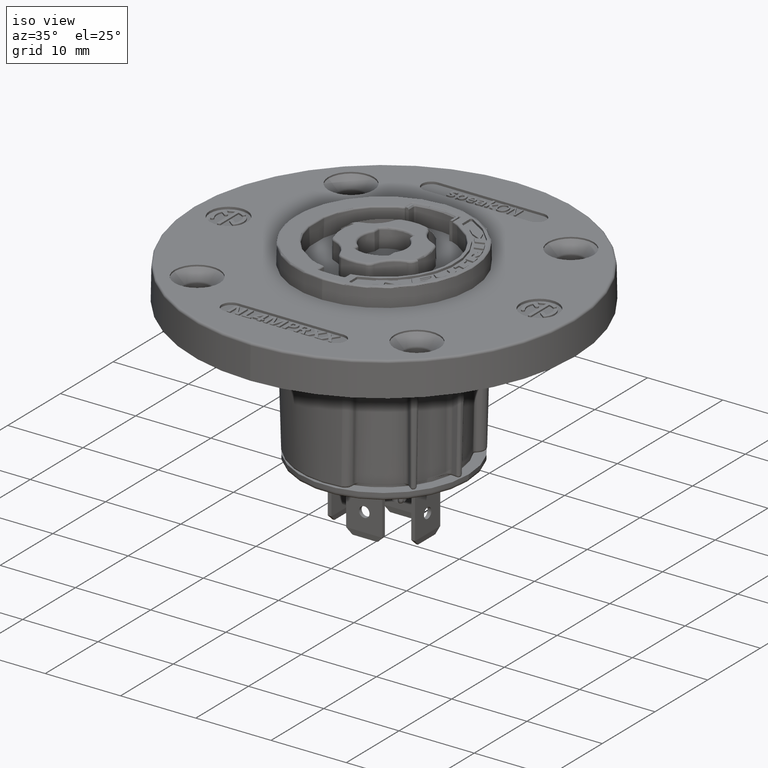
[diagram: clean part render]
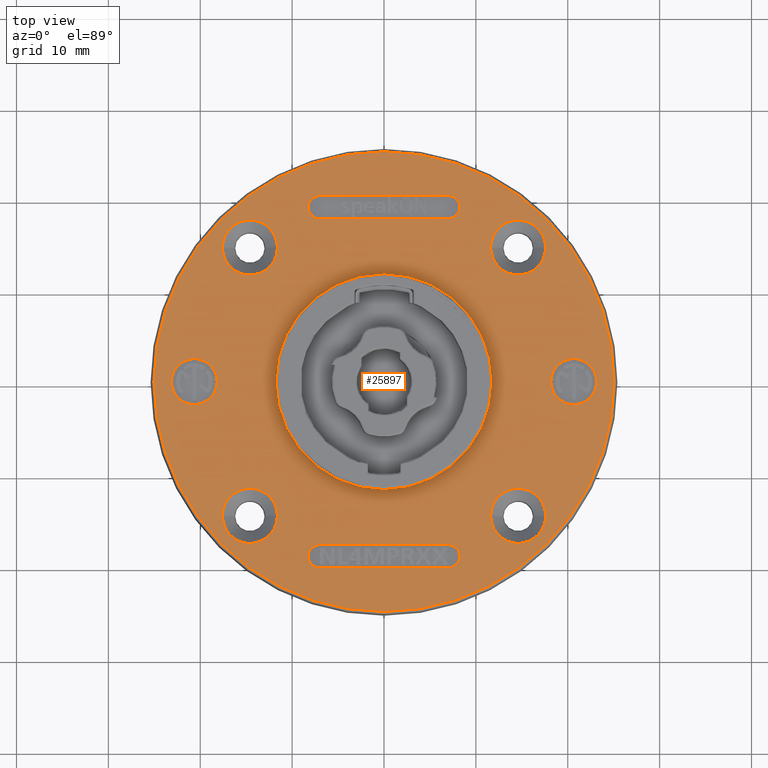
[diagram: tour spotlight — one face highlighted and labeled with its STEP entity id]
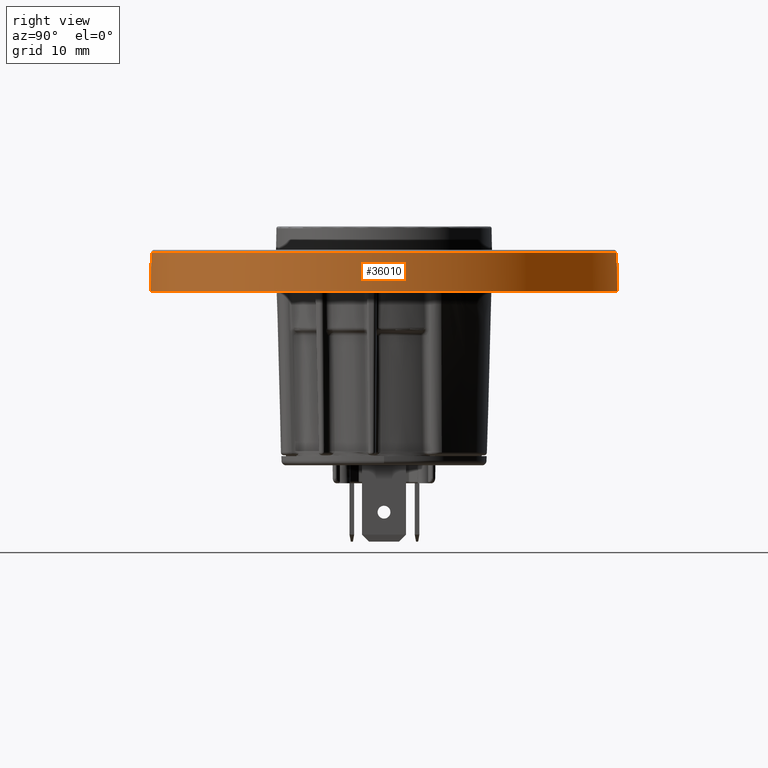
[diagram: tour spotlight — one face highlighted and labeled with its STEP entity id]
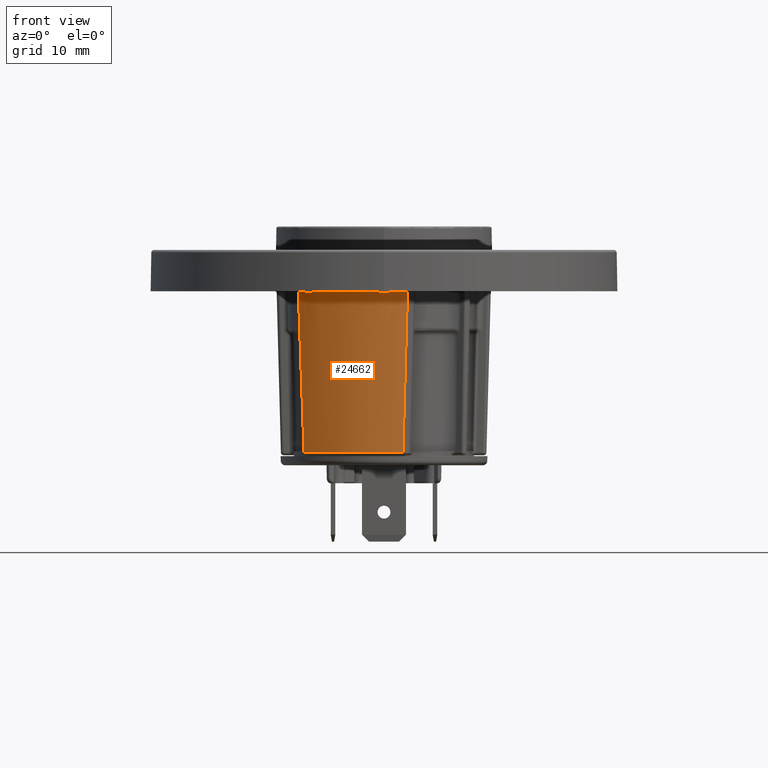
[diagram: tour spotlight — one face highlighted and labeled with its STEP entity id]
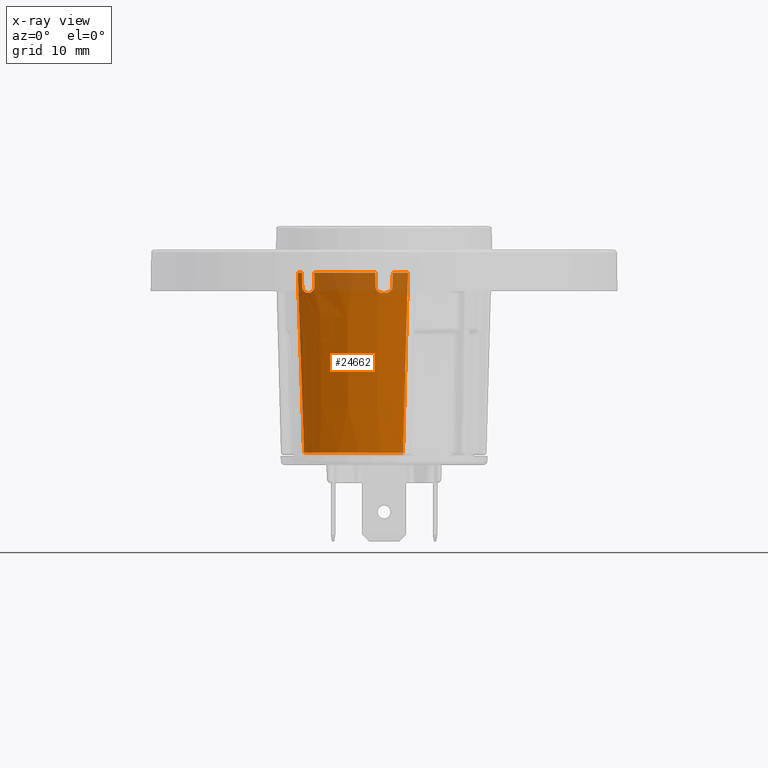
[diagram: x-ray of the same camera — body ghosted, this tour face saturated]
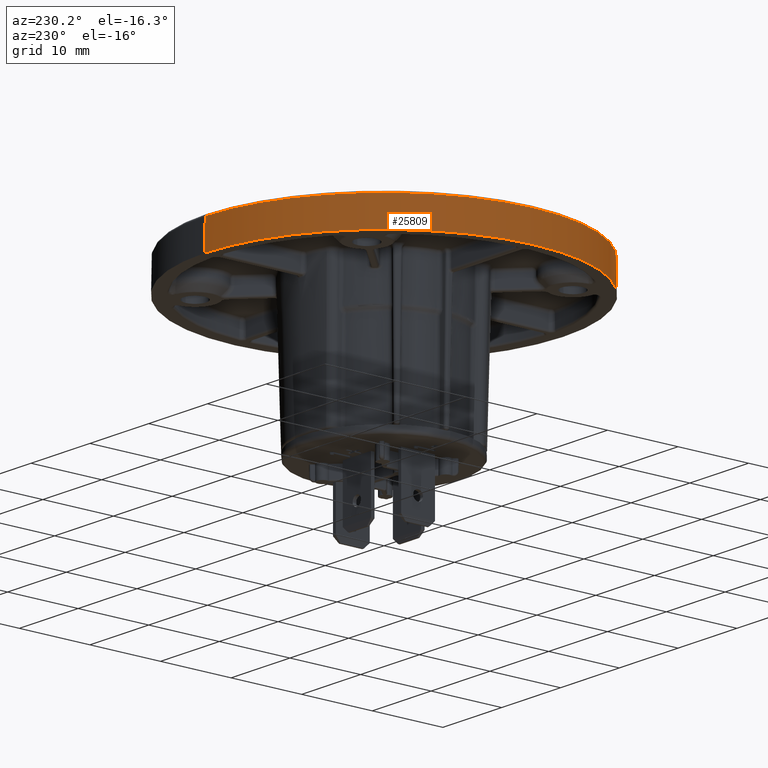
[diagram: tour spotlight — one face highlighted and labeled with its STEP entity id]
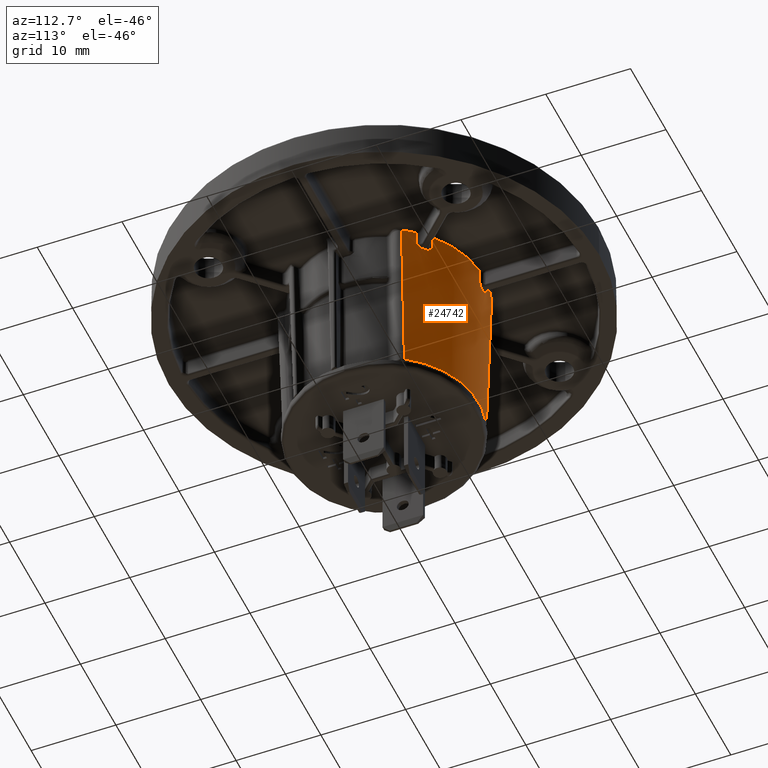
[diagram: tour spotlight — one face highlighted and labeled with its STEP entity id]
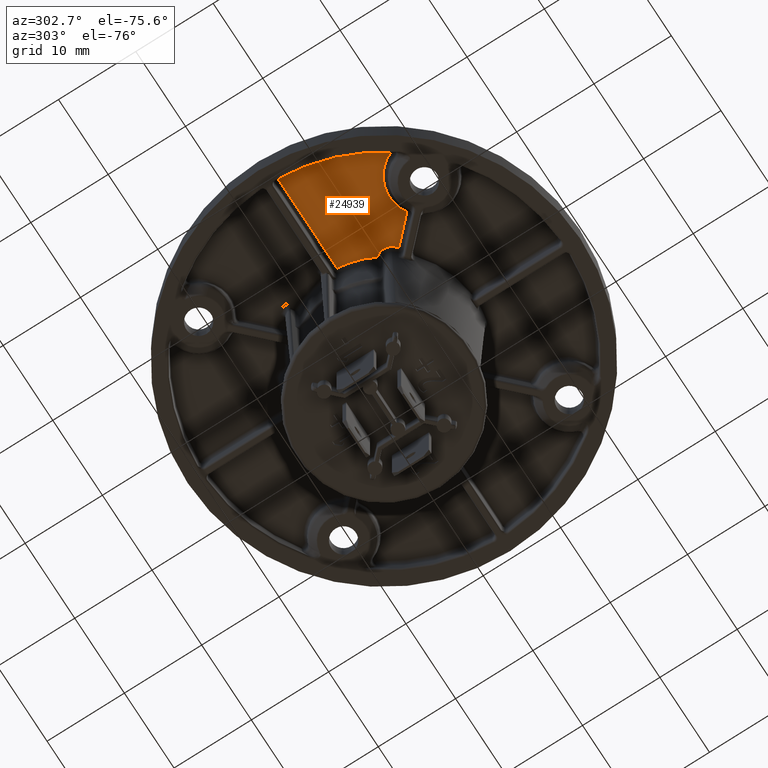
[diagram: tour spotlight — one face highlighted and labeled with its STEP entity id]
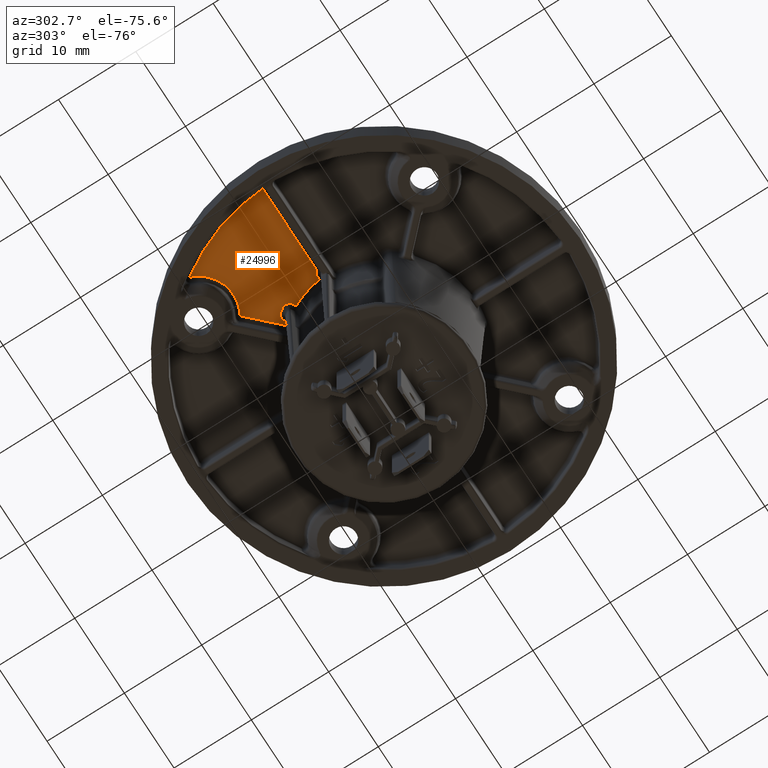
[diagram: tour spotlight — one face highlighted and labeled with its STEP entity id]
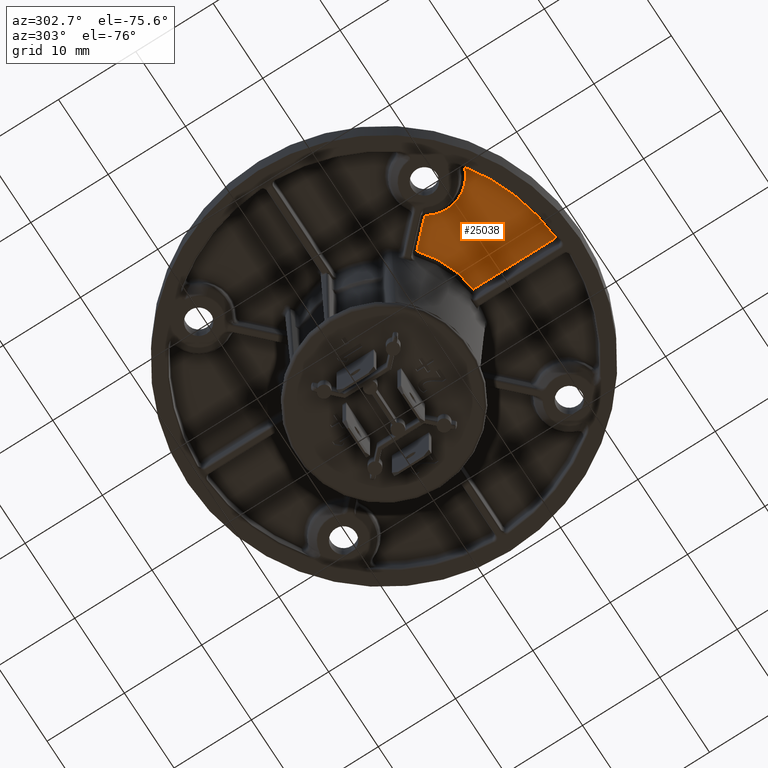
[diagram: tour spotlight — one face highlighted and labeled with its STEP entity id]
A machine part: a face-by-face anatomy tour. The part has 1451 B-rep faces; the first image is the clean iso view, then the 8 largest visible faces are spotlighted one at a time (largest first), each with its STEP entity span.

Face 1 — top view, entity #25897. In plain terms, the highlighted planar face has unit normal (0, 0, -1).
Definition (entity closure, byte-faithful):
#2183=CARTESIAN_POINT('',(-1.46E1,1.46E1,4.5E0));
#2184=DIRECTION('',(0.E0,0.E0,1.E0));
#2185=DIRECTION('',(1.E0,0.E0,0.E0));
#2186=AXIS2_PLACEMENT_3D('',#2183,#2184,#2185);
#2188=CARTESIAN_POINT('',(-1.46E1,1.46E1,4.5E0));
#2189=DIRECTION('',(0.E0,0.E0,1.E0));
#2190=DIRECTION('',(-1.E0,0.E0,0.E0));
#2191=AXIS2_PLACEMENT_3D('',#2188,#2189,#2190);
#2193=CARTESIAN_POINT('',(1.46E1,1.46E1,4.5E0));
#2194=DIRECTION('',(0.E0,0.E0,1.E0));
#2195=DIRECTION('',(1.E0,0.E0,0.E0));
#2196=AXIS2_PLACEMENT_3D('',#2193,#2194,#2195);
#2198=CARTESIAN_POINT('',(1.46E1,1.46E1,4.5E0));
#2199=DIRECTION('',(0.E0,0.E0,1.E0));
#2200=DIRECTION('',(-1.E0,0.E0,0.E0));
#2201=AXIS2_PLACEMENT_3D('',#2198,#2199,#2200);
#2203=CARTESIAN_POINT('',(1.46E1,-1.46E1,4.5E0));
#2204=DIRECTION('',(0.E0,0.E0,1.E0));
#2205=DIRECTION('',(1.E0,0.E0,0.E0));
#2206=AXIS2_PLACEMENT_3D('',#2203,#2204,#2205);
#2208=CARTESIAN_POINT('',(1.46E1,-1.46E1,4.5E0));
#2209=DIRECTION('',(0.E0,0.E0,1.E0));
#2210=DIRECTION('',(-1.E0,0.E0,0.E0));
#2211=AXIS2_PLACEMENT_3D('',#2208,#2209,#2210);
#2213=CARTESIAN_POINT('',(-1.46E1,-1.46E1,4.5E0));
#2214=DIRECTION('',(0.E0,0.E0,1.E0));
#2215=DIRECTION('',(1.E0,0.E0,0.E0));
#2216=AXIS2_PLACEMENT_3D('',#2213,#2214,#2215);
#2218=CARTESIAN_POINT('',(-1.46E1,-1.46E1,4.5E0));
#2219=DIRECTION('',(0.E0,0.E0,1.E0));
#2220=DIRECTION('',(-1.E0,0.E0,0.E0));
#2221=AXIS2_PLACEMENT_3D('',#2218,#2219,#2220);
#2223=CARTESIAN_POINT('',(2.065E1,0.E0,4.5E0));
#2224=DIRECTION('',(0.E0,0.E0,1.E0));
#2225=DIRECTION('',(1.E0,0.E0,0.E0));
#2226=AXIS2_PLACEMENT_3D('',#2223,#2224,#2225);
#2228=CARTESIAN_POINT('',(2.065E1,0.E0,4.5E0));
#2229=DIRECTION('',(0.E0,0.E0,1.E0));
#2230=DIRECTION('',(-1.E0,0.E0,0.E0));
#2231=AXIS2_PLACEMENT_3D('',#2228,#2229,#2230);
#2233=CARTESIAN_POINT('',(-7.E0,1.9E1,4.5E0));
#2234=DIRECTION('',(0.E0,0.E0,1.E0));
#2235=DIRECTION('',(0.E0,1.E0,0.E0));
#2236=AXIS2_PLACEMENT_3D('',#2233,#2234,#2235);
#2238=DIRECTION('',(1.E0,0.E0,0.E0));
#2239=VECTOR('',#2238,1.4E1);
#2240=CARTESIAN_POINT('',(-7.E0,1.775E1,4.5E0));
#2241=LINE('',#2240,#2239);
#2242=CARTESIAN_POINT('',(7.E0,1.9E1,4.5E0));
#2243=DIRECTION('',(0.E0,0.E0,1.E0));
#2244=DIRECTION('',(-6.181721801113E-14,-1.E0,0.E0));
#2245=AXIS2_PLACEMENT_3D('',#2242,#2243,#2244);
#2247=DIRECTION('',(-1.E0,0.E0,0.E0));
#2248=VECTOR('',#2247,1.4E1);
#2249=CARTESIAN_POINT('',(7.E0,2.025E1,4.5E0));
#2250=LINE('',#2249,#2248);
#2251=DIRECTION('',(1.E0,0.E0,0.E0));
#2252=VECTOR('',#2251,1.4E1);
#2253=CARTESIAN_POINT('',(-7.E0,-2.025E1,4.5E0));
#2254=LINE('',#2253,#2252);
#2255=CARTESIAN_POINT('',(7.E0,-1.9E1,4.5E0));
#2256=DIRECTION('',(0.E0,0.E0,1.E0));
#2257=DIRECTION('',(0.E0,-1.E0,0.E0));
#2258=AXIS2_PLACEMENT_3D('',#2255,#2256,#2257);
#2260=DIRECTION('',(-1.E0,0.E0,0.E0));
#2261=VECTOR('',#2260,1.4E1);
#2262=CARTESIAN_POINT('',(7.E0,-1.775E1,4.5E0));
#2263=LINE('',#2262,#2261);
#2264=CARTESIAN_POINT('',(-7.E0,-1.9E1,4.5E0));
#2265=DIRECTION('',(0.E0,0.E0,1.E0));
#2266=DIRECTION('',(0.E0,1.E0,0.E0));
#2267=AXIS2_PLACEMENT_3D('',#2264,#2265,#2266);
#2269=CARTESIAN_POINT('',(-2.065E1,0.E0,4.5E0));
#2270=DIRECTION('',(0.E0,0.E0,1.E0));
#2271=DIRECTION('',(1.E0,0.E0,0.E0));
#2272=AXIS2_PLACEMENT_3D('',#2269,#2270,#2271);
#2274=CARTESIAN_POINT('',(-2.065E1,0.E0,4.5E0));
#2275=DIRECTION('',(0.E0,0.E0,1.E0));
#2276=DIRECTION('',(-1.E0,0.E0,0.E0));
#2277=AXIS2_PLACEMENT_3D('',#2274,#2275,#2276);
#2279=CARTESIAN_POINT('',(0.E0,0.E0,4.5E0));
#2280=DIRECTION('',(0.E0,0.E0,1.E0));
#2281=DIRECTION('',(0.E0,-1.E0,0.E0));
#2282=AXIS2_PLACEMENT_3D('',#2279,#2280,#2281);
#2284=CARTESIAN_POINT('',(0.E0,0.E0,4.5E0));
#2285=DIRECTION('',(0.E0,0.E0,1.E0));
#2286=DIRECTION('',(0.E0,1.E0,0.E0));
#2287=AXIS2_PLACEMENT_3D('',#2284,#2285,#2286);
#2294=CARTESIAN_POINT('',(0.E0,0.E0,4.5E0));
#2295=DIRECTION('',(0.E0,0.E0,-1.E0));
#2296=DIRECTION('',(0.E0,1.E0,0.E0));
#2297=AXIS2_PLACEMENT_3D('',#2294,#2295,#2296);
#3646=CARTESIAN_POINT('',(0.E0,0.E0,4.5E0));
#3647=DIRECTION('',(0.E0,0.E0,1.E0));
#3648=DIRECTION('',(0.E0,1.E0,0.E0));
#3649=AXIS2_PLACEMENT_3D('',#3646,#3647,#3648);
#20973=CARTESIAN_POINT('',(-1.16E1,1.46E1,4.5E0));
#20974=CARTESIAN_POINT('',(-1.76E1,1.46E1,4.5E0));
#20975=VERTEX_POINT('',#20973);
#20976=VERTEX_POINT('',#20974);
#20977=CARTESIAN_POINT('',(1.76E1,1.46E1,4.5E0));
#20978=CARTESIAN_POINT('',(1.16E1,1.46E1,4.5E0));
#20979=VERTEX_POINT('',#20977);
#20980=VERTEX_POINT('',#20978);
#20981=CARTESIAN_POINT('',(1.76E1,-1.46E1,4.5E0));
#20982=CARTESIAN_POINT('',(1.16E1,-1.46E1,4.5E0));
#20983=VERTEX_POINT('',#20981);
#20984=VERTEX_POINT('',#20982);
#20985=CARTESIAN_POINT('',(-1.16E1,-1.46E1,4.5E0));
#20986=CARTESIAN_POINT('',(-1.76E1,-1.46E1,4.5E0));
#20987=VERTEX_POINT('',#20985);
#20988=VERTEX_POINT('',#20986);
#21005=CARTESIAN_POINT('',(0.E0,1.175E1,4.5E0));
#21006=CARTESIAN_POINT('',(0.E0,-1.175E1,4.5E0));
#21007=VERTEX_POINT('',#21005);
#21008=VERTEX_POINT('',#21006);
#21041=CARTESIAN_POINT('',(2.315E1,0.E0,4.5E0));
#21042=CARTESIAN_POINT('',(1.815E1,0.E0,4.5E0));
#21043=VERTEX_POINT('',#21041);
#21044=VERTEX_POINT('',#21042);
#21045=CARTESIAN_POINT('',(-7.E0,2.025E1,4.5E0));
#21046=CARTESIAN_POINT('',(-7.E0,1.775E1,4.5E0));
#21047=VERTEX_POINT('',#21045);
#21048=VERTEX_POINT('',#21046);
#21049=CARTESIAN_POINT('',(7.E0,1.775E1,4.5E0));
#21050=VERTEX_POINT('',#21049);
#21051=CARTESIAN_POINT('',(7.E0,2.025E1,4.5E0));
#21052=VERTEX_POINT('',#21051);
#21061=CARTESIAN_POINT('',(-7.E0,-2.025E1,4.5E0));
#21062=CARTESIAN_POINT('',(7.E0,-2.025E1,4.5E0));
#21063=VERTEX_POINT('',#21061);
#21064=VERTEX_POINT('',#21062);
#21065=CARTESIAN_POINT('',(7.E0,-1.775E1,4.5E0));
#21066=VERTEX_POINT('',#21065);
#21067=CARTESIAN_POINT('',(-7.E0,-1.775E1,4.5E0));
#21068=VERTEX_POINT('',#21067);
#21073=CARTESIAN_POINT('',(-1.815E1,0.E0,4.5E0));
#21074=CARTESIAN_POINT('',(-2.315E1,0.E0,4.5E0));
#21075=VERTEX_POINT('',#21073);
#21076=VERTEX_POINT('',#21074);
#23110=CARTESIAN_POINT('',(0.E0,-2.502664302889E1,4.5E0));
#23111=CARTESIAN_POINT('',(0.E0,2.502664302889E1,4.5E0));
#23112=VERTEX_POINT('',#23110);
#23113=VERTEX_POINT('',#23111);
#25825=CARTESIAN_POINT('',(0.E0,0.E0,4.5E0));
#25826=DIRECTION('',(0.E0,0.E0,-1.E0));
#25827=DIRECTION('',(0.E0,-1.E0,0.E0));
#25828=AXIS2_PLACEMENT_3D('',#25825,#25826,#25827);
#25829=PLANE('',#25828);
#25831=ORIENTED_EDGE('',*,*,#25830,.F.);
#25832=ORIENTED_EDGE('',*,*,#25815,.F.);
#25833=EDGE_LOOP('',(#25831,#25832));
#25834=FACE_OUTER_BOUND('',#25833,.F.);
#25836=ORIENTED_EDGE('',*,*,#25835,.T.);
#25838=ORIENTED_EDGE('',*,*,#25837,.T.);
#25839=EDGE_LOOP('',(#25836,#25838));
#25840=FACE_BOUND('',#25839,.F.);
#25842=ORIENTED_EDGE('',*,*,#25841,.T.);
#25844=ORIENTED_EDGE('',*,*,#25843,.T.);
#25845=EDGE_LOOP('',(#25842,#25844));
#25846=FACE_BOUND('',#25845,.F.);
#25848=ORIENTED_EDGE('',*,*,#25847,.T.);
#25850=ORIENTED_EDGE('',*,*,#25849,.T.);
#25851=EDGE_LOOP('',(#25848,#25850));
#25852=FACE_BOUND('',#25851,.F.);
#25854=ORIENTED_EDGE('',*,*,#25853,.T.);
#25856=ORIENTED_EDGE('',*,*,#25855,.T.);
#25857=EDGE_LOOP('',(#25854,#25856));
#25858=FACE_BOUND('',#25857,.F.);
#25860=ORIENTED_EDGE('',*,*,#25859,.T.);
#25862=ORIENTED_EDGE('',*,*,#25861,.T.);
#25863=EDGE_LOOP('',(#25860,#25862));
#25864=FACE_BOUND('',#25863,.F.);
#25866=ORIENTED_EDGE('',*,*,#25865,.T.);
#25868=ORIENTED_EDGE('',*,*,#25867,.T.);
#25870=ORIENTED_EDGE('',*,*,#25869,.T.);
#25872=ORIENTED_EDGE('',*,*,#25871,.T.);
#25873=EDGE_LOOP('',(#25866,#25868,#25870,#25872));
#25874=FACE_BOUND('',#25873,.F.);
#25876=ORIENTED_EDGE('',*,*,#25875,.T.);
#25878=ORIENTED_EDGE('',*,*,#25877,.T.);
#25880=ORIENTED_EDGE('',*,*,#25879,.T.);
#25882=ORIENTED_EDGE('',*,*,#25881,.T.);
#25883=EDGE_LOOP('',(#25876,#25878,#25880,#25882));
#25884=FACE_BOUND('',#25883,.F.);
#25886=ORIENTED_EDGE('',*,*,#25885,.T.);
#25888=ORIENTED_EDGE('',*,*,#25887,.T.);
#25889=EDGE_LOOP('',(#25886,#25888));
#25890=FACE_BOUND('',#25889,.F.);
#25892=ORIENTED_EDGE('',*,*,#25891,.F.);
#25894=ORIENTED_EDGE('',*,*,#25893,.T.);
#25895=EDGE_LOOP('',(#25892,#25894));
#25896=FACE_BOUND('',#25895,.F.);
#25897=ADVANCED_FACE('',(#25834,#25840,#25846,#25852,#25858,#25864,#25874,
#25884,#25890,#25896),#25829,.F.);
#2187=CIRCLE('',#2186,3.E0);
#2192=CIRCLE('',#2191,3.E0);
#2197=CIRCLE('',#2196,3.E0);
#2202=CIRCLE('',#2201,3.E0);
#2207=CIRCLE('',#2206,3.E0);
#2212=CIRCLE('',#2211,3.E0);
#2217=CIRCLE('',#2216,3.E0);
#2222=CIRCLE('',#2221,3.E0);
#2227=CIRCLE('',#2226,2.5E0);
#2232=CIRCLE('',#2231,2.5E0);
#2237=CIRCLE('',#2236,1.25E0);
#2246=CIRCLE('',#2245,1.25E0);
#2259=CIRCLE('',#2258,1.25E0);
#2268=CIRCLE('',#2267,1.25E0);
#2273=CIRCLE('',#2272,2.5E0);
#2278=CIRCLE('',#2277,2.5E0);
#2283=CIRCLE('',#2282,2.502664302889E1);
#2288=CIRCLE('',#2287,2.502664302889E1);
#2298=CIRCLE('',#2297,1.175E1);
#3650=CIRCLE('',#3649,1.175E1);
#25815=EDGE_CURVE('',#23113,#23112,#2288,.T.);
#25830=EDGE_CURVE('',#23112,#23113,#2283,.T.);
#25835=EDGE_CURVE('',#20975,#20976,#2187,.T.);
#25837=EDGE_CURVE('',#20976,#20975,#2192,.T.);
#25841=EDGE_CURVE('',#20979,#20980,#2197,.T.);
#25843=EDGE_CURVE('',#20980,#20979,#2202,.T.);
#25847=EDGE_CURVE('',#20983,#20984,#2207,.T.);
#25849=EDGE_CURVE('',#20984,#20983,#2212,.T.);
#25853=EDGE_CURVE('',#20987,#20988,#2217,.T.);
#25855=EDGE_CURVE('',#20988,#20987,#2222,.T.);
#25859=EDGE_CURVE('',#21043,#21044,#2227,.T.);
#25861=EDGE_CURVE('',#21044,#21043,#2232,.T.);
#25865=EDGE_CURVE('',#21047,#21048,#2237,.T.);
#25867=EDGE_CURVE('',#21048,#21050,#2241,.T.);
#25869=EDGE_CURVE('',#21050,#21052,#2246,.T.);
#25871=EDGE_CURVE('',#21052,#21047,#2250,.T.);
#25875=EDGE_CURVE('',#21063,#21064,#2254,.T.);
#25877=EDGE_CURVE('',#21064,#21066,#2259,.T.);
#25879=EDGE_CURVE('',#21066,#21068,#2263,.T.);
#25881=EDGE_CURVE('',#21068,#21063,#2268,.T.);
#25885=EDGE_CURVE('',#21075,#21076,#2273,.T.);
#25887=EDGE_CURVE('',#21076,#21075,#2278,.T.);
#25891=EDGE_CURVE('',#21007,#21008,#2298,.T.);
#25893=EDGE_CURVE('',#21007,#21008,#3650,.T.);

Face 2 — right view, entity #36010. In plain terms, the highlighted conical surface has half-angle 1 deg.
Definition (entity closure, byte-faithful):
#2165=DIRECTION('',(0.E0,1.745240643728E-2,9.998476951564E-1));
#2166=VECTOR('',#2165,4.205876297263E0);
#2167=CARTESIAN_POINT('',(0.E0,-2.54E1,0.E0));
#2168=LINE('',#2167,#2166);
#2174=DIRECTION('',(0.E0,-1.745240643728E-2,9.998476951564E-1));
#2175=VECTOR('',#2174,4.205876297263E0);
#2176=CARTESIAN_POINT('',(0.E0,2.54E1,0.E0));
#2177=LINE('',#2176,#2175);
#9496=CARTESIAN_POINT('',(0.E0,0.E0,4.205235721934E0));
#9497=DIRECTION('',(0.E0,0.E0,1.E0));
#9498=DIRECTION('',(0.E0,-1.E0,0.E0));
#9499=AXIS2_PLACEMENT_3D('',#9496,#9497,#9498);
#9501=CARTESIAN_POINT('',(0.E0,0.E0,9.094947017729E-13));
#9502=DIRECTION('',(0.E0,0.E0,-1.E0));
#9503=DIRECTION('',(0.E0,1.E0,0.E0));
#9504=AXIS2_PLACEMENT_3D('',#9501,#9502,#9503);
#21009=CARTESIAN_POINT('',(0.E0,2.54E1,9.048287974682E-13));
#21010=CARTESIAN_POINT('',(0.E0,-2.54E1,9.141606060777E-13));
#21011=VERTEX_POINT('',#21009);
#21012=VERTEX_POINT('',#21010);
#23114=CARTESIAN_POINT('',(0.E0,-2.532659733744E1,4.205235721934E0));
#23115=CARTESIAN_POINT('',(0.E0,2.532659733744E1,4.205235721934E0));
#23116=VERTEX_POINT('',#23114);
#23117=VERTEX_POINT('',#23115);
#35999=CARTESIAN_POINT('',(0.E0,0.E0,2.102617860966E0));
#36000=DIRECTION('',(0.E0,0.E0,-1.E0));
#36001=DIRECTION('',(0.E0,-1.E0,0.E0));
#36002=AXIS2_PLACEMENT_3D('',#35999,#36000,#36001);
#36003=CONICAL_SURFACE('',#36002,2.536329866872E1,1.E0);
#36004=ORIENTED_EDGE('',*,*,#35993,.T.);
#36005=ORIENTED_EDGE('',*,*,#25805,.F.);
#36006=ORIENTED_EDGE('',*,*,#25595,.T.);
#36007=ORIENTED_EDGE('',*,*,#25802,.T.);
#36008=EDGE_LOOP('',(#36004,#36005,#36006,#36007));
#36009=FACE_OUTER_BOUND('',#36008,.F.);
#36010=ADVANCED_FACE('',(#36009),#36003,.T.);
#9500=CIRCLE('',#9499,2.532659733744E1);
#9505=CIRCLE('',#9504,2.54E1);
#25595=EDGE_CURVE('',#21011,#21012,#9505,.T.);
#25802=EDGE_CURVE('',#21012,#23116,#2168,.T.);
#25805=EDGE_CURVE('',#21011,#23117,#2177,.T.);
#35993=EDGE_CURVE('',#23116,#23117,#9500,.T.);

Face 3 — front view, entity #24662. An x-ray twin of the same camera follows (body ghosted, this face saturated) — the face is partly hidden behind the body. In plain terms, the highlighted conical surface has half-angle 1.5 deg.
Definition (entity closure, byte-faithful):
#56=CARTESIAN_POINT('',(0.E0,0.E0,-1.755785308449E1));
#57=DIRECTION('',(0.E0,0.E0,1.E0));
#58=DIRECTION('',(-7.755177829802E-1,-6.313257228099E-1,0.E0));
#59=AXIS2_PLACEMENT_3D('',#56,#57,#58);
#61=CARTESIAN_POINT('',(-9.388728148548E0,-7.043778533479E0,2.013088473164E0));
#62=CARTESIAN_POINT('',(-9.337454311166E0,-7.047423605463E0,5.303488145242E-1));
#63=CARTESIAN_POINT('',(-9.232660717496E0,-7.054677025533E0,-2.493402101111E0));
#64=CARTESIAN_POINT('',(-9.070808482463E0,-7.065236350703E0,-7.141638719804E0));
#65=CARTESIAN_POINT('',(-8.897676313896E0,-7.075805379094E0,-1.208907268065E1));
#66=CARTESIAN_POINT('',(-8.770947721285E0,-7.082947473084E0,-1.569019929757E1));
#67=CARTESIAN_POINT('',(-8.705006138200E0,-7.086483911605E0,-1.755785308286E1));
#69=CARTESIAN_POINT('',(0.E0,0.E0,2.013088474154E0));
#70=DIRECTION('',(0.E0,0.E0,-1.E0));
#71=DIRECTION('',(-7.620666617920E-1,-6.474985737322E-1,0.E0));
#72=AXIS2_PLACEMENT_3D('',#69,#70,#71);
#74=CARTESIAN_POINT('',(-8.893766410077E0,-7.590001060665E0,2.921436865256E-1));
#75=CARTESIAN_POINT('',(-8.899082999493E0,-7.591033910484E0,4.721865174398E-1));
#76=CARTESIAN_POINT('',(-8.909931475795E0,-7.593142868983E0,8.396715229492E-1));
#77=CARTESIAN_POINT('',(-8.926730650565E0,-7.596399179919E0,1.408718613064E0));
#78=CARTESIAN_POINT('',(-8.938534782319E0,-7.598685254704E0,1.808683010453E0));
#79=CARTESIAN_POINT('',(-8.944566753110E0,-7.599852487538E0,2.013088474153E0));
#81=CARTESIAN_POINT('',(-8.403942955361E0,-8.110668694049E0,
-1.947645376990E-1));
#82=CARTESIAN_POINT('',(-8.418259793328E0,-8.095834211029E0,
-1.947643524668E-1));
#83=CARTESIAN_POINT('',(-8.447187629772E0,-8.065789584387E0,
-1.924839227914E-1));
#84=CARTESIAN_POINT('',(-8.491593798666E0,-8.019435896100E0,
-1.818251745217E-1));
#85=CARTESIAN_POINT('',(-8.536583370425E0,-7.972231870104E0,
-1.635506045793E-1));
#86=CARTESIAN_POINT('',(-8.582199460961E0,-7.924129625361E0,
-1.370891440647E-1));
#87=CARTESIAN_POINT('',(-8.628580456358E0,-7.874985438139E0,
-1.015184875048E-1));
#88=CARTESIAN_POINT('',(-8.675823473972E0,-7.824705411575E0,
-5.567351098527E-2));
#89=CARTESIAN_POINT('',(-8.724983229755E0,-7.772175614696E0,2.989439735679E-3));
#90=CARTESIAN_POINT('',(-8.776109827114E0,-7.717333306930E0,7.717753826661E-2));
#91=CARTESIAN_POINT('',(-8.821349023843E0,-7.668611818759E0,1.539812173598E-1));
#92=CARTESIAN_POINT('',(-8.859114471962E0,-7.627758356433E0,2.243043741895E-1));
#93=CARTESIAN_POINT('',(-8.882535863647E0,-7.602267786208E0,2.700628836712E-1));
#94=CARTESIAN_POINT('',(-8.893766410077E0,-7.590001060665E0,2.921436865256E-1));
#96=CARTESIAN_POINT('',(0.E0,0.E0,-1.947646103384E-1));
#97=DIRECTION('',(0.E0,0.E0,-1.E0));
#98=DIRECTION('',(-6.944401537921E-1,-7.195504657779E-1,0.E0));
#99=AXIS2_PLACEMENT_3D('',#96,#97,#98);
#101=CARTESIAN_POINT('',(-7.590002684134E0,-8.893765143004E0,
2.921469239519E-1));
#102=CARTESIAN_POINT('',(-7.602303638787E0,-8.882505780909E0,
2.700054273397E-1));
#103=CARTESIAN_POINT('',(-7.628326175025E0,-8.858593909621E0,
2.232533452190E-1));
#104=CARTESIAN_POINT('',(-7.672779204570E0,-8.817492718137E0,
1.468487249425E-1));
#105=CARTESIAN_POINT('',(-7.724748221034E0,-8.769207763104E0,
6.642440399657E-2));
#106=CARTESIAN_POINT('',(-7.776218676870E0,-8.721201998150E0,
-1.660843315864E-3));
#107=CARTESIAN_POINT('',(-7.826124826766E0,-8.674490153136E0,
-5.698383415562E-2));
#108=CARTESIAN_POINT('',(-7.874763618244E0,-8.628787516573E0,
-1.012553680745E-1));
#109=CARTESIAN_POINT('',(-7.922808525443E0,-8.583447472046E0,
-1.361849726625E-1));
#110=CARTESIAN_POINT('',(-7.969929719479E0,-8.538770677290E0,
-1.624315363629E-1));
#111=CARTESIAN_POINT('',(-8.017209000046E0,-8.493722634623E0,
-1.811712286504E-1));
#112=CARTESIAN_POINT('',(-8.064731055201E0,-8.448206140681E0,
-1.923813755460E-1));
#113=CARTESIAN_POINT('',(-8.095452352226E0,-8.418628331397E0,
-1.947643300971E-1));
#114=CARTESIAN_POINT('',(-8.110668695491E0,-8.403942954249E0,
-1.947645383558E-1));
#116=CARTESIAN_POINT('',(-7.590002684134E0,-8.893765143004E0,
2.921469239519E-1));
#117=CARTESIAN_POINT('',(-7.591035236947E0,-8.899080203582E0,
4.721379817949E-1));
#118=CARTESIAN_POINT('',(-7.593141554507E0,-8.909929178747E0,
8.395720732924E-1));
#119=CARTESIAN_POINT('',(-7.596409921708E0,-8.926784790177E0,1.410558917064E0));
#120=CARTESIAN_POINT('',(-7.598689812928E0,-8.938558338094E0,1.809481245305E0));
#121=CARTESIAN_POINT('',(-7.599852487538E0,-8.944566753109E0,2.013088474152E0));
#123=CARTESIAN_POINT('',(0.E0,0.E0,2.013088474154E0));
#124=DIRECTION('',(0.E0,0.E0,-1.E0));
#125=DIRECTION('',(-8.101187197468E-2,-9.967131365640E-1,0.E0));
#126=AXIS2_PLACEMENT_3D('',#123,#124,#125);
#128=CARTESIAN_POINT('',(-9.219030102738E-1,-1.165578355371E1,
2.921409013014E-1));
#129=CARTESIAN_POINT('',(-9.249324055902E-1,-1.166027378030E1,
4.722035846118E-1));
#130=CARTESIAN_POINT('',(-9.311101789101E-1,-1.166943708237E1,
8.397212412576E-1));
#131=CARTESIAN_POINT('',(-9.406898753161E-1,-1.168362192844E1,
1.408911132163E0));
#132=CARTESIAN_POINT('',(-9.474180902687E-1,-1.169358250719E1,
1.808766410724E0));
#133=CARTESIAN_POINT('',(-9.508565759440E-1,-1.169867103586E1,
2.013088474153E0));
#135=CARTESIAN_POINT('',(-2.073762018762E-1,-1.167759388811E1,
-1.947645437632E-1));
#136=CARTESIAN_POINT('',(-2.279953264770E-1,-1.167722775072E1,
-1.947643558483E-1));
#137=CARTESIAN_POINT('',(-2.697093304999E-1,-1.167643778329E1,
-1.924828377127E-1));
#138=CARTESIAN_POINT('',(-3.339214987202E-1,-1.167505982641E1,
-1.818139644805E-1));
#139=CARTESIAN_POINT('',(-3.991385914184E-1,-1.167349316200E1,
-1.635240942173E-1));
#140=CARTESIAN_POINT('',(-4.654421398128E-1,-1.167173401756E1,
-1.370364662365E-1));
#141=CARTESIAN_POINT('',(-5.330140882405E-1,-1.166977911535E1,
-1.014359137954E-1));
#142=CARTESIAN_POINT('',(-6.020222995565E-1,-1.166762975033E1,
-5.553430441099E-2));
#143=CARTESIAN_POINT('',(-6.739514799960E-1,-1.166524556113E1,
3.181833760972E-3));
#144=CARTESIAN_POINT('',(-7.488639160031E-1,-1.166261841664E1,
7.739419956896E-2));
#145=CARTESIAN_POINT('',(-8.151379475758E-1,-1.166016172251E1,
1.540216851023E-1));
#146=CARTESIAN_POINT('',(-8.706746679031E-1,-1.165798127562E1,
2.242738965933E-1));
#147=CARTESIAN_POINT('',(-9.052722554465E-1,-1.165651562984E1,
2.700376833985E-1));
#148=CARTESIAN_POINT('',(-9.219030102738E-1,-1.165578355371E1,
2.921409013014E-1));
#150=CARTESIAN_POINT('',(0.E0,0.E0,-1.947646103384E-1));
#151=DIRECTION('',(0.E0,0.E0,-1.E0));
#152=DIRECTION('',(1.775567188287E-2,-9.998423556321E-1,0.E0));
#153=AXIS2_PLACEMENT_3D('',#150,#151,#152);
#155=CARTESIAN_POINT('',(9.218992756898E-1,-1.165578401028E1,
2.921469239045E-1));
#156=CARTESIAN_POINT('',(9.052395910203E-1,-1.165652052784E1,
2.700053901622E-1));
#157=CARTESIAN_POINT('',(8.699305902066E-1,-1.165801299573E1,
2.232532591195E-1));
#158=CARTESIAN_POINT('',(8.094346316540E-1,-1.166038310221E1,
1.468486567366E-1));
#159=CARTESIAN_POINT('',(7.385443664304E-1,-1.166298812708E1,
6.642434286067E-2));
#160=CARTESIAN_POINT('',(6.682040687569E-1,-1.166543803294E1,
-1.660883336242E-3));
#161=CARTESIAN_POINT('',(5.998848388288E-1,-1.166769674720E1,
-5.698386050108E-2));
#162=CARTESIAN_POINT('',(5.331753840815E-1,-1.166977292191E1,
-1.012553841113E-1));
#163=CARTESIAN_POINT('',(4.671422599082E-1,-1.167168554835E1,
-1.361849812093E-1));
#164=CARTESIAN_POINT('',(4.022312887765E-1,-1.167341399938E1,
-1.624315394279E-1));
#165=CARTESIAN_POINT('',(3.369460196554E-1,-1.167499172264E1,
-1.811712290887E-1));
#166=CARTESIAN_POINT('',(2.711578329013E-1,-1.167640986852E1,
-1.923813755534E-1));
#167=CARTESIAN_POINT('',(2.285199265198E-1,-1.167721843645E1,
-1.947643300969E-1));
#168=CARTESIAN_POINT('',(2.073762171156E-1,-1.167759388619E1,
-1.947645383558E-1));
#170=CARTESIAN_POINT('',(9.218992756898E-1,-1.165578401028E1,
2.921469239045E-1));
#171=CARTESIAN_POINT('',(9.249287171280E-1,-1.166027430524E1,
4.722123486272E-1));
#172=CARTESIAN_POINT('',(9.311121066263E-1,-1.166943714462E1,
8.397294302016E-1));
#173=CARTESIAN_POINT('',(9.406964806626E-1,-1.168363250771E1,1.409334072482E0));
#174=CARTESIAN_POINT('',(9.474211694680E-1,-1.169358706402E1,1.808949383255E0));
#175=CARTESIAN_POINT('',(9.508565759436E-1,-1.169867103586E1,2.013088474153E0));
#177=CARTESIAN_POINT('',(0.E0,0.E0,2.013088474154E0));
#178=DIRECTION('',(0.E0,0.E0,-1.E0));
#179=DIRECTION('',(2.223582668433E-1,-9.749650256119E-1,0.E0));
#180=AXIS2_PLACEMENT_3D('',#177,#178,#179);
#182=CARTESIAN_POINT('',(2.609874517606E0,-1.144340802810E1,2.013088473264E0));
#183=CARTESIAN_POINT('',(2.568700001599E0,-1.141341789804E1,5.468492786876E-1));
#184=CARTESIAN_POINT('',(2.484368168775E0,-1.135175493731E1,-2.454098262899E0));
#185=CARTESIAN_POINT('',(2.353385123570E0,-1.125518024338E1,-7.107919227218E0));
#186=CARTESIAN_POINT('',(2.213405131167E0,-1.115105713328E1,-1.207313226222E1));
#187=CARTESIAN_POINT('',(2.111398292227E0,-1.107443014061E1,-1.568460195994E1));
#188=CARTESIAN_POINT('',(2.058429276790E0,-1.103441231059E1,-1.755785308295E1));
#16593=CARTESIAN_POINT('',(-8.893766410077E0,-7.590001060665E0,
2.921436865256E-1));
#16667=CARTESIAN_POINT('',(-8.705006138200E0,-7.086483911605E0,
-1.755785308286E1));
#16669=CARTESIAN_POINT('',(-9.388728148548E0,-7.043778533479E0,
2.013088473164E0));
#16741=CARTESIAN_POINT('',(2.609874517606E0,-1.144340802810E1,
2.013088473264E0));
#17380=CARTESIAN_POINT('',(-9.219030102738E-1,-1.165578355371E1,
2.921409013014E-1));
#22345=VERTEX_POINT('',#16741);
#22348=CARTESIAN_POINT('',(9.508565759430E-1,-1.169867103585E1,
2.013088474154E0));
#22349=VERTEX_POINT('',#22348);
#22352=VERTEX_POINT('',#16669);
#22486=CARTESIAN_POINT('',(-9.508565759470E-1,-1.169867103586E1,
2.013088474153E0));
#22488=VERTEX_POINT('',#22486);
#22493=CARTESIAN_POINT('',(-7.599852487538E0,-8.944566753109E0,
2.013088474154E0));
#22494=VERTEX_POINT('',#22493);
#22598=CARTESIAN_POINT('',(-8.944566753112E0,-7.599852487536E0,
2.013088474153E0));
#22600=VERTEX_POINT('',#22598);
#22947=VERTEX_POINT('',#16667);
#22949=CARTESIAN_POINT('',(2.058429275322E0,-1.103441230278E1,
-1.755785308449E1));
#22950=VERTEX_POINT('',#22949);
#23042=VERTEX_POINT('',#17380);
#23043=VERTEX_POINT('',#135);
#23046=CARTESIAN_POINT('',(2.073762175064E-1,-1.167759390810E1,
-1.947646103384E-1));
#23047=VERTEX_POINT('',#23046);
#23048=VERTEX_POINT('',#155);
#23050=VERTEX_POINT('',#16593);
#23051=VERTEX_POINT('',#81);
#23054=CARTESIAN_POINT('',(-8.110668710706E0,-8.403942970017E0,
-1.947646103384E-1));
#23055=VERTEX_POINT('',#23054);
#23056=VERTEX_POINT('',#101);
#24624=CARTESIAN_POINT('',(0.E0,0.E0,-7.772382304631E0));
#24625=DIRECTION('',(0.E0,0.E0,1.E0));
#24626=DIRECTION('',(0.E0,1.E0,0.E0));
#24627=AXIS2_PLACEMENT_3D('',#24624,#24625,#24626);
#24628=CONICAL_SURFACE('',#24627,1.148100820264E1,1.5E0);
#24630=ORIENTED_EDGE('',*,*,#24629,.F.);
#24632=ORIENTED_EDGE('',*,*,#24631,.F.);
#24634=ORIENTED_EDGE('',*,*,#24633,.F.);
#24636=ORIENTED_EDGE('',*,*,#24635,.F.);
#24638=ORIENTED_EDGE('',*,*,#24637,.F.);
#24640=ORIENTED_EDGE('',*,*,#24639,.F.);
#24641=ORIENTED_EDGE('',*,*,#24581,.F.);
#24643=ORIENTED_EDGE('',*,*,#24642,.T.);
#24645=ORIENTED_EDGE('',*,*,#24644,.F.);
#24647=ORIENTED_EDGE('',*,*,#24646,.F.);
#24649=ORIENTED_EDGE('',*,*,#24648,.F.);
#24651=ORIENTED_EDGE('',*,*,#24650,.F.);
#24653=ORIENTED_EDGE('',*,*,#24652,.F.);
#24655=ORIENTED_EDGE('',*,*,#24654,.T.);
#24657=ORIENTED_EDGE('',*,*,#24656,.F.);
#24659=ORIENTED_EDGE('',*,*,#24658,.T.);
#24660=EDGE_LOOP('',(#24630,#24632,#24634,#24636,#24638,#24640,#24641,#24643,
#24645,#24647,#24649,#24651,#24653,#24655,#24657,#24659));
#24661=FACE_OUTER_BOUND('',#24660,.F.);
#24662=ADVANCED_FACE('',(#24661),#24628,.T.);
#60=CIRCLE('',#59,1.122476663228E1);
#68=B_SPLINE_CURVE_WITH_KNOTS('',3,(#61,#62,#63,#64,#65,#66,#67),.UNSPECIFIED.,
.F.,.F.,(4,1,1,1,4),(0.E0,2.5E-1,5.E-1,7.5E-1,1.E0),.UNSPECIFIED.);
#73=CIRCLE('',#72,1.173724977297E1);
#80=B_SPLINE_CURVE_WITH_KNOTS('',3,(#74,#75,#76,#77,#78,#79),.UNSPECIFIED.,.F.,
.F.,(4,1,1,4),(0.E0,3.333333333333E-1,6.666666666667E-1,1.E0),.UNSPECIFIED.);
#95=B_SPLINE_CURVE_WITH_KNOTS('',3,(#81,#82,#83,#84,#85,#86,#87,#88,#89,#90,#91,
#92,#93,#94),.UNSPECIFIED.,.F.,.F.,(4,1,1,1,1,1,1,1,1,1,1,4),(0.E0,
9.090909090909E-2,1.818181818182E-1,2.727272727273E-1,3.636363636364E-1,
4.545454545455E-1,5.454545454545E-1,6.363636363636E-1,7.272727272727E-1,
8.181818181818E-1,9.090909090909E-1,1.E0),.UNSPECIFIED.);
#100=CIRCLE('',#99,1.167943510527E1);
#115=B_SPLINE_CURVE_WITH_KNOTS('',3,(#101,#102,#103,#104,#105,#106,#107,#108,
#109,#110,#111,#112,#113,#114),.UNSPECIFIED.,.F.,.F.,(4,1,1,1,1,1,1,1,1,1,1,4),(
0.E0,9.090909090909E-2,1.818181818182E-1,2.727272727273E-1,3.636363636364E-1,
4.545454545455E-1,5.454545454545E-1,6.363636363636E-1,7.272727272727E-1,
8.181818181818E-1,9.090909090909E-1,1.E0),.UNSPECIFIED.);
#122=B_SPLINE_CURVE_WITH_KNOTS('',3,(#116,#117,#118,#119,#120,#121),
.UNSPECIFIED.,.F.,.F.,(4,1,1,4),(0.E0,3.333333333333E-1,6.666666666667E-1,1.E0),
.UNSPECIFIED.);
#127=CIRCLE('',#126,1.173724977297E1);
#134=B_SPLINE_CURVE_WITH_KNOTS('',3,(#128,#129,#130,#131,#132,#133),
.UNSPECIFIED.,.F.,.F.,(4,1,1,4),(0.E0,3.333333333333E-1,6.666666666667E-1,1.E0),
.UNSPECIFIED.);
#149=B_SPLINE_CURVE_WITH_KNOTS('',3,(#135,#136,#137,#138,#139,#140,#141,#142,
#143,#144,#145,#146,#147,#148),.UNSPECIFIED.,.F.,.F.,(4,1,1,1,1,1,1,1,1,1,1,4),(
0.E0,9.090909090909E-2,1.818181818182E-1,2.727272727273E-1,3.636363636364E-1,
4.545454545455E-1,5.454545454545E-1,6.363636363636E-1,7.272727272727E-1,
8.181818181818E-1,9.090909090909E-1,1.E0),.UNSPECIFIED.);
#154=CIRCLE('',#153,1.167943510527E1);
#169=B_SPLINE_CURVE_WITH_KNOTS('',3,(#155,#156,#157,#158,#159,#160,#161,#162,
#163,#164,#165,#166,#167,#168),.UNSPECIFIED.,.F.,.F.,(4,1,1,1,1,1,1,1,1,1,1,4),(
0.E0,9.090909090909E-2,1.818181818182E-1,2.727272727273E-1,3.636363636364E-1,
4.545454545455E-1,5.454545454545E-1,6.363636363636E-1,7.272727272727E-1,
8.181818181818E-1,9.090909090909E-1,1.E0),.UNSPECIFIED.);
#176=B_SPLINE_CURVE_WITH_KNOTS('',3,(#170,#171,#172,#173,#174,#175),
.UNSPECIFIED.,.F.,.F.,(4,1,1,4),(0.E0,3.333333333333E-1,6.666666666667E-1,1.E0),
.UNSPECIFIED.);
#181=CIRCLE('',#180,1.173724977297E1);
#189=B_SPLINE_CURVE_WITH_KNOTS('',3,(#182,#183,#184,#185,#186,#187,#188),
.UNSPECIFIED.,.F.,.F.,(4,1,1,1,4),(0.E0,2.5E-1,5.E-1,7.5E-1,1.E0),
.UNSPECIFIED.);
#24581=EDGE_CURVE('',#23056,#23055,#115,.T.);
#24629=EDGE_CURVE('',#22947,#22950,#60,.T.);
#24631=EDGE_CURVE('',#22352,#22947,#68,.T.);
#24633=EDGE_CURVE('',#22600,#22352,#73,.T.);
#24635=EDGE_CURVE('',#23050,#22600,#80,.T.);
#24637=EDGE_CURVE('',#23051,#23050,#95,.T.);
#24639=EDGE_CURVE('',#23055,#23051,#100,.T.);
#24642=EDGE_CURVE('',#23056,#22494,#122,.T.);
#24644=EDGE_CURVE('',#22488,#22494,#127,.T.);
#24646=EDGE_CURVE('',#23042,#22488,#134,.T.);
#24648=EDGE_CURVE('',#23043,#23042,#149,.T.);
#24650=EDGE_CURVE('',#23047,#23043,#154,.T.);
#24652=EDGE_CURVE('',#23048,#23047,#169,.T.);
#24654=EDGE_CURVE('',#23048,#22349,#176,.T.);
#24656=EDGE_CURVE('',#22345,#22349,#181,.T.);
#24658=EDGE_CURVE('',#22345,#22950,#189,.T.);

Face 4 — auxiliary view, entity #25809. In plain terms, the highlighted conical surface has half-angle 1 deg.
Definition (entity closure, byte-faithful):
#2160=CARTESIAN_POINT('',(0.E0,0.E0,4.205235721934E0));
#2161=DIRECTION('',(0.E0,0.E0,1.E0));
#2162=DIRECTION('',(0.E0,1.E0,0.E0));
#2163=AXIS2_PLACEMENT_3D('',#2160,#2161,#2162);
#2165=DIRECTION('',(0.E0,1.745240643728E-2,9.998476951564E-1));
#2166=VECTOR('',#2165,4.205876297263E0);
#2167=CARTESIAN_POINT('',(0.E0,-2.54E1,0.E0));
#2168=LINE('',#2167,#2166);
#2169=CARTESIAN_POINT('',(0.E0,0.E0,9.094947017729E-13));
#2170=DIRECTION('',(0.E0,0.E0,1.E0));
#2171=DIRECTION('',(0.E0,1.E0,0.E0));
#2172=AXIS2_PLACEMENT_3D('',#2169,#2170,#2171);
#2174=DIRECTION('',(0.E0,-1.745240643728E-2,9.998476951564E-1));
#2175=VECTOR('',#2174,4.205876297263E0);
#2176=CARTESIAN_POINT('',(0.E0,2.54E1,0.E0));
#2177=LINE('',#2176,#2175);
#21009=CARTESIAN_POINT('',(0.E0,2.54E1,9.048287974682E-13));
#21010=CARTESIAN_POINT('',(0.E0,-2.54E1,9.141606060777E-13));
#21011=VERTEX_POINT('',#21009);
#21012=VERTEX_POINT('',#21010);
#23114=CARTESIAN_POINT('',(0.E0,-2.532659733744E1,4.205235721934E0));
#23115=CARTESIAN_POINT('',(0.E0,2.532659733744E1,4.205235721934E0));
#23116=VERTEX_POINT('',#23114);
#23117=VERTEX_POINT('',#23115);
#25795=CARTESIAN_POINT('',(0.E0,0.E0,2.102617860966E0));
#25796=DIRECTION('',(0.E0,0.E0,-1.E0));
#25797=DIRECTION('',(0.E0,-1.E0,0.E0));
#25798=AXIS2_PLACEMENT_3D('',#25795,#25796,#25797);
#25799=CONICAL_SURFACE('',#25798,2.536329866872E1,1.E0);
#25801=ORIENTED_EDGE('',*,*,#25800,.T.);
#25803=ORIENTED_EDGE('',*,*,#25802,.F.);
#25804=ORIENTED_EDGE('',*,*,#25593,.F.);
#25806=ORIENTED_EDGE('',*,*,#25805,.T.);
#25807=EDGE_LOOP('',(#25801,#25803,#25804,#25806));
#25808=FACE_OUTER_BOUND('',#25807,.F.);
#25809=ADVANCED_FACE('',(#25808),#25799,.T.);
#2164=CIRCLE('',#2163,2.532659733744E1);
#2173=CIRCLE('',#2172,2.54E1);
#25593=EDGE_CURVE('',#21011,#21012,#2173,.T.);
#25800=EDGE_CURVE('',#23117,#23116,#2164,.T.);
#25802=EDGE_CURVE('',#21012,#23116,#2168,.T.);
#25805=EDGE_CURVE('',#21011,#23117,#2177,.T.);

Face 5 — auxiliary view, entity #24742. In plain terms, the highlighted conical surface has half-angle 1.5 deg.
Definition (entity closure, byte-faithful):
#250=CARTESIAN_POINT('',(0.E0,0.E0,-1.755785308449E1));
#251=DIRECTION('',(0.E0,0.E0,1.E0));
#252=DIRECTION('',(8.277093792241E-1,5.611570043620E-1,0.E0));
#253=AXIS2_PLACEMENT_3D('',#250,#251,#252);
#255=CARTESIAN_POINT('',(9.290844623760E0,6.298856419813E0,-1.755785308497E1));
#256=CARTESIAN_POINT('',(9.340853694548E0,6.294012938452E0,-1.608091362074E1));
#257=CARTESIAN_POINT('',(9.442834526262E0,6.283948169545E0,-1.306253116069E1));
#258=CARTESIAN_POINT('',(9.600283992069E0,6.267811988744E0,-8.381654396618E0));
#259=CARTESIAN_POINT('',(9.766202445639E0,6.250169136437E0,-3.426837437535E0));
#260=CARTESIAN_POINT('',(9.885690483850E0,6.236975935440E0,1.583066011851E-1));
#261=CARTESIAN_POINT('',(9.947349244912E0,6.230030120138E0,2.013088475997E0));
#263=CARTESIAN_POINT('',(0.E0,0.E0,2.013088474154E0));
#264=DIRECTION('',(0.E0,0.E0,-1.E0));
#265=DIRECTION('',(7.620666617920E-1,6.474985737322E-1,0.E0));
#266=AXIS2_PLACEMENT_3D('',#263,#264,#265);
#268=CARTESIAN_POINT('',(8.893767460595E0,7.589999721468E0,2.921409029731E-1));
#269=CARTESIAN_POINT('',(8.899084070666E0,7.591032575299E0,4.721844333620E-1));
#270=CARTESIAN_POINT('',(8.909931050073E0,7.593143506486E0,8.396750065294E-1));
#271=CARTESIAN_POINT('',(8.926731226650E0,7.596399085856E0,1.408733013481E0));
#272=CARTESIAN_POINT('',(8.938534971254E0,7.598685291264E0,1.808689412901E0));
#273=CARTESIAN_POINT('',(8.944566753110E0,7.599852487538E0,2.013088474153E0));
#275=CARTESIAN_POINT('',(8.403942944828E0,8.110668707620E0,-1.947645437628E-1));
#276=CARTESIAN_POINT('',(8.418263968734E0,8.095829887280E0,-1.947643558471E-1));
#277=CARTESIAN_POINT('',(8.447201631087E0,8.065775042330E0,-1.924828379257E-1));
#278=CARTESIAN_POINT('',(8.491632125652E0,8.019395822574E0,-1.818139658011E-1));
#279=CARTESIAN_POINT('',(8.536639772741E0,7.972172577584E0,-1.635240974584E-1));
#280=CARTESIAN_POINT('',(8.582279556059E0,7.924044988511E0,-1.370364723178E-1));
#281=CARTESIAN_POINT('',(8.628677811794E0,7.874882083760E0,-1.014359239078E-1));
#282=CARTESIAN_POINT('',(8.675954152679E0,7.824566081942E0,-5.553431999073E-2));
#283=CARTESIAN_POINT('',(8.725129884634E0,7.772018597578E0,3.181810932490E-3));
#284=CARTESIAN_POINT('',(8.776243300682E0,7.717189838440E0,7.739416611622E-2));
#285=CARTESIAN_POINT('',(8.821368969530E0,7.668589880037E0,1.540216419423E-1));
#286=CARTESIAN_POINT('',(8.859097556915E0,7.627777673926E0,2.242738558771E-1));
#287=CARTESIAN_POINT('',(8.882525388776E0,7.602277107319E0,2.700376706445E-1));
#288=CARTESIAN_POINT('',(8.893767460595E0,7.589999721468E0,2.921409029731E-1));
#290=CARTESIAN_POINT('',(0.E0,0.E0,-1.947646103384E-1));
#291=DIRECTION('',(0.E0,0.E0,-1.E0));
#292=DIRECTION('',(6.944401537921E-1,7.195504657779E-1,0.E0));
#293=AXIS2_PLACEMENT_3D('',#290,#291,#292);
#295=CARTESIAN_POINT('',(7.590002684479E0,8.893765142692E0,2.921469234541E-1));
#296=CARTESIAN_POINT('',(7.602304110849E0,8.882505361256E0,2.700045854427E-1));
#297=CARTESIAN_POINT('',(7.628326341918E0,8.858593767369E0,2.232527214059E-1));
#298=CARTESIAN_POINT('',(7.672792715844E0,8.817480197631E0,1.468262020145E-1));
#299=CARTESIAN_POINT('',(7.724738120112E0,8.769217096698E0,6.644325921986E-2));
#300=CARTESIAN_POINT('',(7.776135260254E0,8.721279872933E0,-1.555565752598E-3));
#301=CARTESIAN_POINT('',(7.826030191337E0,8.674578921111E0,-5.689000033687E-2));
#302=CARTESIAN_POINT('',(7.874701555498E0,8.628845992013E0,-1.012063923017E-1));
#303=CARTESIAN_POINT('',(7.922764733992E0,8.583488915657E0,-1.361577984354E-1));
#304=CARTESIAN_POINT('',(7.969905318249E0,8.538793902498E0,-1.624210855330E-1));
#305=CARTESIAN_POINT('',(8.017203190326E0,8.493728204473E0,-1.811700277781E-1));
#306=CARTESIAN_POINT('',(8.064730648907E0,8.448206534712E0,-1.923814357244E-1));
#307=CARTESIAN_POINT('',(8.095452983185E0,8.418627722455E0,-1.947643300933E-1));
#308=CARTESIAN_POINT('',(8.110668695491E0,8.403942954249E0,-1.947645383558E-1));
#310=CARTESIAN_POINT('',(7.590002684479E0,8.893765142692E0,2.921469234541E-1));
#311=CARTESIAN_POINT('',(7.591035243397E0,8.899080234698E0,4.721390455719E-1));
#312=CARTESIAN_POINT('',(7.593141568262E0,8.909929250641E0,8.395745039454E-1));
#313=CARTESIAN_POINT('',(7.596409909783E0,8.926784728393E0,1.410556825401E0));
#314=CARTESIAN_POINT('',(7.598689807680E0,8.938558310973E0,1.809480326239E0));
#315=CARTESIAN_POINT('',(7.599852487538E0,8.944566753109E0,2.013088474152E0));
#317=CARTESIAN_POINT('',(0.E0,0.E0,2.013088474154E0));
#318=DIRECTION('',(0.E0,0.E0,-1.E0));
#319=DIRECTION('',(8.101187197468E-2,9.967131365640E-1,0.E0));
#320=AXIS2_PLACEMENT_3D('',#317,#318,#319);
#322=CARTESIAN_POINT('',(9.219030077156E-1,1.165578355402E1,2.921409055781E-1));
#323=CARTESIAN_POINT('',(9.249324613717E-1,1.166027386709E1,4.722070565141E-1));
#324=CARTESIAN_POINT('',(9.311103352393E-1,1.166943731238E1,8.397304618239E-1));
#325=CARTESIAN_POINT('',(9.406916592392E-1,1.168362457056E1,1.409017168575E0));
#326=CARTESIAN_POINT('',(9.474188632002E-1,1.169358365103E1,1.808812339944E0));
#327=CARTESIAN_POINT('',(9.508565759440E-1,1.169867103586E1,2.013088474153E0));
#329=CARTESIAN_POINT('',(2.073762018762E-1,1.167759388811E1,
-1.947645437633E-1));
#330=CARTESIAN_POINT('',(2.279953427101E-1,1.167722775043E1,
-1.947643558467E-1));
#331=CARTESIAN_POINT('',(2.697093879930E-1,1.167643778227E1,
-1.924828375384E-1));
#332=CARTESIAN_POINT('',(3.339217277417E-1,1.167505982123E1,
-1.818139146040E-1));
#333=CARTESIAN_POINT('',(3.991388519899E-1,1.167349315564E1,
-1.635240176743E-1));
#334=CARTESIAN_POINT('',(4.654427030231E-1,1.167173400179E1,
-1.370361977162E-1));
#335=CARTESIAN_POINT('',(5.330142977361E-1,1.166977910927E1,
-1.014358016281E-1));
#336=CARTESIAN_POINT('',(6.020236163734E-1,1.166762970873E1,
-5.553339954573E-2));
#337=CARTESIAN_POINT('',(6.739521378097E-1,1.166524553623E1,3.182657423787E-3));
#338=CARTESIAN_POINT('',(7.488592114845E-1,1.166261858362E1,7.738931642699E-2));
#339=CARTESIAN_POINT('',(8.151341250618E-1,1.166016187118E1,1.540168753710E-1));
#340=CARTESIAN_POINT('',(8.706752762072E-1,1.165798125246E1,2.242746363988E-1));
#341=CARTESIAN_POINT('',(9.052726375636E-1,1.165651561515E1,2.700381984756E-1));
#342=CARTESIAN_POINT('',(9.219030077156E-1,1.165578355402E1,2.921409055781E-1));
#344=CARTESIAN_POINT('',(0.E0,0.E0,-1.947646103384E-1));
#345=DIRECTION('',(0.E0,0.E0,-1.E0));
#346=DIRECTION('',(-1.775567188278E-2,9.998423556321E-1,0.E0));
#347=AXIS2_PLACEMENT_3D('',#344,#345,#346);
#349=CARTESIAN_POINT('',(-9.218992753423E-1,1.165578401030E1,
2.921469235781E-1));
#350=CARTESIAN_POINT('',(-9.052395906730E-1,1.165652052786E1,
2.700053898362E-1));
#351=CARTESIAN_POINT('',(-8.699305903688E-1,1.165801299572E1,
2.232532592722E-1));
#352=CARTESIAN_POINT('',(-8.094346316113E-1,1.166038310221E1,
1.468486566967E-1));
#353=CARTESIAN_POINT('',(-7.385443664461E-1,1.166298812708E1,
6.642434287616E-2));
#354=CARTESIAN_POINT('',(-6.682040687644E-1,1.166543803294E1,
-1.660883329573E-3));
#355=CARTESIAN_POINT('',(-5.998848388391E-1,1.166769674720E1,
-5.698386049345E-2));
#356=CARTESIAN_POINT('',(-5.331753840865E-1,1.166977292191E1,
-1.012553841086E-1));
#357=CARTESIAN_POINT('',(-4.671422599119E-1,1.167168554835E1,
-1.361849812076E-1));
#358=CARTESIAN_POINT('',(-4.022312887801E-1,1.167341399938E1,
-1.624315394266E-1));
#359=CARTESIAN_POINT('',(-3.369460196578E-1,1.167499172264E1,
-1.811712290882E-1));
#360=CARTESIAN_POINT('',(-2.711578329017E-1,1.167640986852E1,
-1.923813755534E-1));
#361=CARTESIAN_POINT('',(-2.285199265200E-1,1.167721843645E1,
-1.947643300970E-1));
#362=CARTESIAN_POINT('',(-2.073762171153E-1,1.167759388619E1,
-1.947645383558E-1));
#364=CARTESIAN_POINT('',(-9.218992753423E-1,1.165578401030E1,
2.921469235781E-1));
#365=CARTESIAN_POINT('',(-9.249287178240E-1,1.166027430680E1,
4.722124103260E-1));
#366=CARTESIAN_POINT('',(-9.311121066908E-1,1.166943714442E1,
8.397294242418E-1));
#367=CARTESIAN_POINT('',(-9.406962635001E-1,1.168363218621E1,1.409321169562E0));
#368=CARTESIAN_POINT('',(-9.474210753204E-1,1.169358692469E1,1.808943788802E0));
#369=CARTESIAN_POINT('',(-9.508565759437E-1,1.169867103586E1,2.013088474153E0));
#371=CARTESIAN_POINT('',(0.E0,0.E0,2.013088474154E0));
#372=DIRECTION('',(0.E0,0.E0,-1.E0));
#373=DIRECTION('',(-3.108324759956E-1,9.504647136356E-1,0.E0));
#374=AXIS2_PLACEMENT_3D('',#371,#372,#373);
#376=CARTESIAN_POINT('',(-3.648318408878E0,1.115584174608E1,2.013088473496E0));
#377=CARTESIAN_POINT('',(-3.607413864380E0,1.112877724622E1,5.451884497966E-1));
#378=CARTESIAN_POINT('',(-3.523665173541E0,1.107316623770E1,-2.458301752610E0));
#379=CARTESIAN_POINT('',(-3.393652976755E0,1.098617032203E1,-7.114498048169E0));
#380=CARTESIAN_POINT('',(-3.254854986199E0,1.089253870228E1,-1.207795932308E1));
#381=CARTESIAN_POINT('',(-3.153774736642E0,1.082373311248E1,-1.568655298229E1));
#382=CARTESIAN_POINT('',(-3.101305981485E0,1.078783051780E1,-1.755785308338E1));
#14915=CARTESIAN_POINT('',(-3.101305981485E0,1.078783051780E1,
-1.755785308338E1));
#14950=CARTESIAN_POINT('',(-3.648318408878E0,1.115584174608E1,
2.013088473496E0));
#14983=CARTESIAN_POINT('',(9.290844623760E0,6.298856419813E0,
-1.755785308497E1));
#14985=CARTESIAN_POINT('',(9.947349244912E0,6.230030120138E0,2.013088475997E0));
#15561=CARTESIAN_POINT('',(8.893767460595E0,7.589999721468E0,
2.921409029731E-1));
#15882=CARTESIAN_POINT('',(9.219030077156E-1,1.165578355402E1,
2.921409055781E-1));
#22383=VERTEX_POINT('',#14950);
#22386=CARTESIAN_POINT('',(-9.508565759430E-1,1.169867103585E1,
2.013088474154E0));
#22387=VERTEX_POINT('',#22386);
#22390=VERTEX_POINT('',#14985);
#22556=CARTESIAN_POINT('',(8.944566753112E0,7.599852487536E0,2.013088474153E0));
#22558=VERTEX_POINT('',#22556);
#22572=CARTESIAN_POINT('',(9.508565759470E-1,1.169867103586E1,
2.013088474153E0));
#22574=VERTEX_POINT('',#22572);
#22579=CARTESIAN_POINT('',(7.599852487538E0,8.944566753109E0,2.013088474154E0));
#22580=VERTEX_POINT('',#22579);
#22891=VERTEX_POINT('',#14915);
#23007=VERTEX_POINT('',#14983);
#23058=VERTEX_POINT('',#15882);
#23059=VERTEX_POINT('',#329);
#23062=CARTESIAN_POINT('',(-2.073762175054E-1,1.167759390810E1,
-1.947646103384E-1));
#23063=VERTEX_POINT('',#23062);
#23064=VERTEX_POINT('',#349);
#23084=VERTEX_POINT('',#15561);
#23085=VERTEX_POINT('',#275);
#23088=CARTESIAN_POINT('',(8.110668710706E0,8.403942970017E0,
-1.947646103384E-1));
#23089=VERTEX_POINT('',#23088);
#23090=VERTEX_POINT('',#295);
#24703=CARTESIAN_POINT('',(0.E0,0.E0,-7.772382304631E0));
#24704=DIRECTION('',(0.E0,0.E0,1.E0));
#24705=DIRECTION('',(0.E0,1.E0,0.E0));
#24706=AXIS2_PLACEMENT_3D('',#24703,#24704,#24705);
#24707=CONICAL_SURFACE('',#24706,1.148100820264E1,1.5E0);
#24709=ORIENTED_EDGE('',*,*,#24708,.F.);
#24711=ORIENTED_EDGE('',*,*,#24710,.T.);
#24713=ORIENTED_EDGE('',*,*,#24712,.F.);
#24715=ORIENTED_EDGE('',*,*,#24714,.F.);
#24717=ORIENTED_EDGE('',*,*,#24716,.F.);
#24719=ORIENTED_EDGE('',*,*,#24718,.F.);
#24721=ORIENTED_EDGE('',*,*,#24720,.F.);
#24723=ORIENTED_EDGE('',*,*,#24722,.T.);
#24725=ORIENTED_EDGE('',*,*,#24724,.F.);
#24727=ORIENTED_EDGE('',*,*,#24726,.F.);
#24729=ORIENTED_EDGE('',*,*,#24728,.F.);
#24731=ORIENTED_EDGE('',*,*,#24730,.F.);
#24733=ORIENTED_EDGE('',*,*,#24732,.F.);
#24735=ORIENTED_EDGE('',*,*,#24734,.T.);
#24737=ORIENTED_EDGE('',*,*,#24736,.F.);
#24739=ORIENTED_EDGE('',*,*,#24738,.T.);
#24740=EDGE_LOOP('',(#24709,#24711,#24713,#24715,#24717,#24719,#24721,#24723,
#24725,#24727,#24729,#24731,#24733,#24735,#24737,#24739));
#24741=FACE_OUTER_BOUND('',#24740,.F.);
#24742=ADVANCED_FACE('',(#24741),#24707,.T.);
#254=CIRCLE('',#253,1.122476663228E1);
#262=B_SPLINE_CURVE_WITH_KNOTS('',3,(#255,#256,#257,#258,#259,#260,#261),
.UNSPECIFIED.,.F.,.F.,(4,1,1,1,4),(0.E0,2.5E-1,5.E-1,7.5E-1,1.E0),
.UNSPECIFIED.);
#267=CIRCLE('',#266,1.173724977297E1);
#274=B_SPLINE_CURVE_WITH_KNOTS('',3,(#268,#269,#270,#271,#272,#273),
.UNSPECIFIED.,.F.,.F.,(4,1,1,4),(0.E0,3.333333333333E-1,6.666666666667E-1,1.E0),
.UNSPECIFIED.);
#289=B_SPLINE_CURVE_WITH_KNOTS('',3,(#275,#276,#277,#278,#279,#280,#281,#282,
#283,#284,#285,#286,#287,#288),.UNSPECIFIED.,.F.,.F.,(4,1,1,1,1,1,1,1,1,1,1,4),(
0.E0,9.090909090909E-2,1.818181818182E-1,2.727272727273E-1,3.636363636364E-1,
4.545454545455E-1,5.454545454545E-1,6.363636363636E-1,7.272727272727E-1,
8.181818181818E-1,9.090909090909E-1,1.E0),.UNSPECIFIED.);
#294=CIRCLE('',#293,1.167943510527E1);
#309=B_SPLINE_CURVE_WITH_KNOTS('',3,(#295,#296,#297,#298,#299,#300,#301,#302,
#303,#304,#305,#306,#307,#308),.UNSPECIFIED.,.F.,.F.,(4,1,1,1,1,1,1,1,1,1,1,4),(
0.E0,9.090909090909E-2,1.818181818182E-1,2.727272727273E-1,3.636363636364E-1,
4.545454545455E-1,5.454545454545E-1,6.363636363636E-1,7.272727272727E-1,
8.181818181818E-1,9.090909090909E-1,1.E0),.UNSPECIFIED.);
#316=B_SPLINE_CURVE_WITH_KNOTS('',3,(#310,#311,#312,#313,#314,#315),
.UNSPECIFIED.,.F.,.F.,(4,1,1,4),(0.E0,3.333333333333E-1,6.666666666667E-1,1.E0),
.UNSPECIFIED.);
#321=CIRCLE('',#320,1.173724977297E1);
#328=B_SPLINE_CURVE_WITH_KNOTS('',3,(#322,#323,#324,#325,#326,#327),
.UNSPECIFIED.,.F.,.F.,(4,1,1,4),(0.E0,3.333333333333E-1,6.666666666667E-1,1.E0),
.UNSPECIFIED.);
#343=B_SPLINE_CURVE_WITH_KNOTS('',3,(#329,#330,#331,#332,#333,#334,#335,#336,
#337,#338,#339,#340,#341,#342),.UNSPECIFIED.,.F.,.F.,(4,1,1,1,1,1,1,1,1,1,1,4),(
0.E0,9.090909090909E-2,1.818181818182E-1,2.727272727273E-1,3.636363636364E-1,
4.545454545455E-1,5.454545454545E-1,6.363636363636E-1,7.272727272727E-1,
8.181818181818E-1,9.090909090909E-1,1.E0),.UNSPECIFIED.);
#348=CIRCLE('',#347,1.167943510527E1);
#363=B_SPLINE_CURVE_WITH_KNOTS('',3,(#349,#350,#351,#352,#353,#354,#355,#356,
#357,#358,#359,#360,#361,#362),.UNSPECIFIED.,.F.,.F.,(4,1,1,1,1,1,1,1,1,1,1,4),(
0.E0,9.090909090909E-2,1.818181818182E-1,2.727272727273E-1,3.636363636364E-1,
4.545454545455E-1,5.454545454545E-1,6.363636363636E-1,7.272727272727E-1,
8.181818181818E-1,9.090909090909E-1,1.E0),.UNSPECIFIED.);
#370=B_SPLINE_CURVE_WITH_KNOTS('',3,(#364,#365,#366,#367,#368,#369),
.UNSPECIFIED.,.F.,.F.,(4,1,1,4),(0.E0,3.333333333333E-1,6.666666666667E-1,1.E0),
.UNSPECIFIED.);
#375=CIRCLE('',#374,1.173724977297E1);
#383=B_SPLINE_CURVE_WITH_KNOTS('',3,(#376,#377,#378,#379,#380,#381,#382),
.UNSPECIFIED.,.F.,.F.,(4,1,1,1,4),(0.E0,2.5E-1,5.E-1,7.5E-1,1.E0),
.UNSPECIFIED.);
#24708=EDGE_CURVE('',#23007,#22891,#254,.T.);
#24710=EDGE_CURVE('',#23007,#22390,#262,.T.);
#24712=EDGE_CURVE('',#22558,#22390,#267,.T.);
#24714=EDGE_CURVE('',#23084,#22558,#274,.T.);
#24716=EDGE_CURVE('',#23085,#23084,#289,.T.);
#24718=EDGE_CURVE('',#23089,#23085,#294,.T.);
#24720=EDGE_CURVE('',#23090,#23089,#309,.T.);
#24722=EDGE_CURVE('',#23090,#22580,#316,.T.);
#24724=EDGE_CURVE('',#22574,#22580,#321,.T.);
#24726=EDGE_CURVE('',#23058,#22574,#328,.T.);
#24728=EDGE_CURVE('',#23059,#23058,#343,.T.);
#24730=EDGE_CURVE('',#23063,#23059,#348,.T.);
#24732=EDGE_CURVE('',#23064,#23063,#363,.T.);
#24734=EDGE_CURVE('',#23064,#22387,#370,.T.);
#24736=EDGE_CURVE('',#22383,#22387,#375,.T.);
#24738=EDGE_CURVE('',#22383,#22891,#383,.T.);

Face 6 — auxiliary view, entity #24939. In plain terms, the highlighted planar face has unit normal (0, 0, -1).
Definition (entity closure, byte-faithful):
#475=CARTESIAN_POINT('',(-9.788545441644E0,-7.343736570563E0,2.499999999383E0));
#476=CARTESIAN_POINT('',(-9.813772472933E0,-7.310110937768E0,2.499999983053E0));
#477=CARTESIAN_POINT('',(-9.861168359443E0,-7.241052691151E0,2.500000007865E0));
#478=CARTESIAN_POINT('',(-9.923211885642E0,-7.132243091936E0,2.499999997893E0));
#479=CARTESIAN_POINT('',(-9.976258229660E0,-7.017934450393E0,2.500000000565E0));
#480=CARTESIAN_POINT('',(-1.001939140436E1,-6.899950973064E0,2.499999999849E0));
#481=CARTESIAN_POINT('',(-1.005248569899E1,-6.778926401906E0,2.500000000041E0));
#482=CARTESIAN_POINT('',(-1.007534716138E1,-6.655648468734E0,2.499999999989E0));
#483=CARTESIAN_POINT('',(-1.008785183882E1,-6.530755999373E0,2.500000000003E0));
#484=CARTESIAN_POINT('',(-1.008987061352E1,-6.405205652666E0,2.499999999998E0));
#485=CARTESIAN_POINT('',(-1.008139870810E1,-6.280038831329E0,2.500000000003E0));
#486=CARTESIAN_POINT('',(-1.006251943467E1,-6.156087168866E0,2.499999999988E0));
#487=CARTESIAN_POINT('',(-1.003333838561E1,-6.034012925964E0,2.500000000043E0));
#488=CARTESIAN_POINT('',(-9.993907536443E0,-5.914453164735E0,2.499999999839E0));
#489=CARTESIAN_POINT('',(-9.944821489565E0,-5.799054984750E0,2.500000000600E0));
#490=CARTESIAN_POINT('',(-9.885669140614E0,-5.687041957760E0,2.499999997762E0));
#491=CARTESIAN_POINT('',(-9.816736975038E0,-5.579713231208E0,2.500000008353E0));
#492=CARTESIAN_POINT('',(-9.765091045644E0,-5.512575855662E0,2.499999982001E0));
#493=CARTESIAN_POINT('',(-9.737766472165E0,-5.480011446781E0,2.5E0));
#495=DIRECTION('',(6.427876096873E-1,7.660444431183E-1,0.E0));
#496=VECTOR('',#495,1.416872299753E-1);
#497=CARTESIAN_POINT('',(-9.737766472165E0,-5.480011446781E0,2.5E0));
#498=LINE('',#497,#496);
#499=CARTESIAN_POINT('',(0.E0,0.E0,2.5E0));
#500=DIRECTION('',(0.E0,0.E0,-1.E0));
#501=DIRECTION('',(-8.736878073674E-1,-4.864870144798E-1,0.E0));
#502=AXIS2_PLACEMENT_3D('',#499,#500,#501);
#504=DIRECTION('',(-1.E0,0.E0,0.E0));
#505=VECTOR('',#504,1.189043710699E1);
#506=CARTESIAN_POINT('',(-1.099675440729E1,-9.913486315578E-1,2.5E0));
#507=LINE('',#506,#505);
#508=CARTESIAN_POINT('',(0.E0,0.E0,2.5E0));
#509=DIRECTION('',(0.E0,0.E0,1.E0));
#510=DIRECTION('',(-9.990632423615E-1,-4.327398481970E-2,0.E0));
#511=AXIS2_PLACEMENT_3D('',#508,#509,#510);
#513=CARTESIAN_POINT('',(-1.46E1,-1.46E1,2.5E0));
#514=DIRECTION('',(0.E0,0.E0,-1.E0));
#515=DIRECTION('',(-9.395519883071E-1,3.424062809999E-1,0.E0));
#516=AXIS2_PLACEMENT_3D('',#513,#514,#515);
#518=DIRECTION('',(7.071067810634E-1,7.071067813097E-1,0.E0));
#519=VECTOR('',#518,4.070085823722E0);
#520=CARTESIAN_POINT('',(-1.220345479886E1,-1.080147612008E1,2.5E0));
#521=LINE('',#520,#519);
#522=CARTESIAN_POINT('',(0.E0,0.E0,2.5E0));
#523=DIRECTION('',(0.E0,0.E0,-1.E0));
#524=DIRECTION('',(-7.620666617920E-1,-6.474985737322E-1,0.E0));
#525=AXIS2_PLACEMENT_3D('',#522,#523,#524);
#22350=VERTEX_POINT('',#475);
#22351=VERTEX_POINT('',#493);
#22354=CARTESIAN_POINT('',(-9.646691676286E0,-5.371472731598E0,2.5E0));
#22355=VERTEX_POINT('',#22354);
#22402=CARTESIAN_POINT('',(-1.099675440729E1,-9.913486315578E-1,2.5E0));
#22403=VERTEX_POINT('',#22402);
#22601=CARTESIAN_POINT('',(-9.325469513398E0,-7.923490833610E0,2.5E0));
#22602=VERTEX_POINT('',#22601);
#22603=CARTESIAN_POINT('',(-1.881985553696E1,-1.306213401839E1,2.5E0));
#22604=CARTESIAN_POINT('',(-1.220345479903E1,-1.080147612487E1,2.5E0));
#22605=VERTEX_POINT('',#22603);
#22606=VERTEX_POINT('',#22604);
#22771=CARTESIAN_POINT('',(-2.288719151428E1,-9.913486315578E-1,2.5E0));
#22772=VERTEX_POINT('',#22771);
#24916=CARTESIAN_POINT('',(0.E0,0.E0,2.5E0));
#24917=DIRECTION('',(0.E0,0.E0,-1.E0));
#24918=DIRECTION('',(-1.E0,0.E0,0.E0));
#24919=AXIS2_PLACEMENT_3D('',#24916,#24917,#24918);
#24920=PLANE('',#24919);
#24922=ORIENTED_EDGE('',*,*,#24921,.T.);
#24924=ORIENTED_EDGE('',*,*,#24923,.T.);
#24926=ORIENTED_EDGE('',*,*,#24925,.T.);
#24928=ORIENTED_EDGE('',*,*,#24927,.T.);
#24930=ORIENTED_EDGE('',*,*,#24929,.T.);
#24932=ORIENTED_EDGE('',*,*,#24931,.T.);
#24934=ORIENTED_EDGE('',*,*,#24933,.T.);
#24936=ORIENTED_EDGE('',*,*,#24935,.T.);
#24937=EDGE_LOOP('',(#24922,#24924,#24926,#24928,#24930,#24932,#24934,#24936));
#24938=FACE_OUTER_BOUND('',#24937,.F.);
#24939=ADVANCED_FACE('',(#24938),#24920,.T.);
#494=B_SPLINE_CURVE_WITH_KNOTS('',3,(#475,#476,#477,#478,#479,#480,#481,#482,
#483,#484,#485,#486,#487,#488,#489,#490,#491,#492,#493),.UNSPECIFIED.,.F.,.F.,
(4,1,1,1,1,1,1,1,1,1,1,1,1,1,1,1,4),(0.E0,6.25E-2,1.25E-1,1.875E-1,2.5E-1,
3.125E-1,3.75E-1,4.375E-1,5.E-1,5.625E-1,6.25E-1,6.875E-1,7.5E-1,8.125E-1,
8.75E-1,9.375E-1,1.E0),.UNSPECIFIED.);
#503=CIRCLE('',#502,1.104134863156E1);
#512=CIRCLE('',#511,2.290865136844E1);
#517=CIRCLE('',#516,4.491348631558E0);
#526=CIRCLE('',#525,1.223707843546E1);
#24921=EDGE_CURVE('',#22350,#22351,#494,.T.);
#24923=EDGE_CURVE('',#22351,#22355,#498,.T.);
#24925=EDGE_CURVE('',#22355,#22403,#503,.T.);
#24927=EDGE_CURVE('',#22403,#22772,#507,.T.);
#24929=EDGE_CURVE('',#22772,#22605,#512,.T.);
#24931=EDGE_CURVE('',#22605,#22606,#517,.T.);
#24933=EDGE_CURVE('',#22606,#22602,#521,.T.);
#24935=EDGE_CURVE('',#22602,#22350,#526,.T.);

Face 7 — auxiliary view, entity #24996. In plain terms, the highlighted planar face has unit normal (0, 0, -1).
Definition (entity closure, byte-faithful):
#578=CARTESIAN_POINT('',(0.E0,0.E0,2.5E0));
#579=DIRECTION('',(0.E0,0.E0,-1.E0));
#580=DIRECTION('',(-9.929033394114E-1,1.189241715791E-1,0.E0));
#581=AXIS2_PLACEMENT_3D('',#578,#579,#580);
#583=DIRECTION('',(-8.433914458129E-1,5.372996083468E-1,0.E0));
#584=VECTOR('',#583,4.411523672815E-1);
#585=CARTESIAN_POINT('',(-9.822999044814E0,5.041831945751E0,2.5E0));
#586=LINE('',#585,#584);
#587=CARTESIAN_POINT('',(-1.019506317768E1,5.278862939912E0,2.5E0));
#588=CARTESIAN_POINT('',(-1.021836794343E1,5.293709913928E0,2.499999961848E0));
#589=CARTESIAN_POINT('',(-1.026317729973E1,5.325637099985E0,2.500000017707E0));
#590=CARTESIAN_POINT('',(-1.032518784488E1,5.380214005537E0,2.499999995256E0));
#591=CARTESIAN_POINT('',(-1.038156192379E1,5.441269667307E0,2.500000001271E0));
#592=CARTESIAN_POINT('',(-1.043116798634E1,5.507646392008E0,2.499999999659E0));
#593=CARTESIAN_POINT('',(-1.047357059523E1,5.578611646033E0,2.500000000091E0));
#594=CARTESIAN_POINT('',(-1.050841989493E1,5.653506070794E0,2.499999999976E0));
#595=CARTESIAN_POINT('',(-1.053541185157E1,5.731710225382E0,2.500000000005E0));
#596=CARTESIAN_POINT('',(-1.055419458348E1,5.812303330127E0,2.500000000005E0));
#597=CARTESIAN_POINT('',(-1.056455328275E1,5.894281812160E0,2.499999999974E0));
#598=CARTESIAN_POINT('',(-1.056642348732E1,5.976835863711E0,2.500000000099E0));
#599=CARTESIAN_POINT('',(-1.055976085214E1,6.059379200918E0,2.499999999630E0));
#600=CARTESIAN_POINT('',(-1.054457301980E1,6.140895469477E0,2.500000001380E0));
#601=CARTESIAN_POINT('',(-1.052109086154E1,6.220324659065E0,2.499999994851E0));
#602=CARTESIAN_POINT('',(-1.048924844227E1,6.297475785977E0,2.500000019217E0));
#603=CARTESIAN_POINT('',(-1.046293048367E1,6.346175570112E0,2.499999958593E0));
#604=CARTESIAN_POINT('',(-1.044844557255E1,6.369935145844E0,2.499999999876E0));
#606=CARTESIAN_POINT('',(0.E0,0.E0,2.5E0));
#607=DIRECTION('',(0.E0,0.E0,-1.E0));
#608=DIRECTION('',(-8.538349759980E-1,5.205437865948E-1,0.E0));
#609=AXIS2_PLACEMENT_3D('',#606,#607,#608);
#611=CARTESIAN_POINT('',(-1.018882573159E1,6.777456666231E0,2.499999999785E0));
#612=CARTESIAN_POINT('',(-1.017356012618E1,6.800405767651E0,2.499999961229E0));
#613=CARTESIAN_POINT('',(-1.014082396706E1,6.844501464012E0,2.500000017994E0));
#614=CARTESIAN_POINT('',(-1.008493912595E1,6.905524705028E0,2.499999995179E0));
#615=CARTESIAN_POINT('',(-1.002283712755E1,6.960610016237E0,2.500000001292E0));
#616=CARTESIAN_POINT('',(-9.955584058716E0,7.008824983463E0,2.499999999654E0));
#617=CARTESIAN_POINT('',(-9.883867526611E0,7.049777820095E0,2.500000000093E0));
#618=CARTESIAN_POINT('',(-9.808295447775E0,7.083144505802E0,2.499999999976E0));
#619=CARTESIAN_POINT('',(-9.729558467655E0,7.108585619444E0,2.500000000005E0));
#620=CARTESIAN_POINT('',(-9.648643028396E0,7.125761119232E0,2.500000000005E0));
#621=CARTESIAN_POINT('',(-9.566497230108E0,7.134497121689E0,2.499999999974E0));
#622=CARTESIAN_POINT('',(-9.483877115831E0,7.134742715073E0,2.500000000098E0));
#623=CARTESIAN_POINT('',(-9.401340543609E0,7.126426907846E0,2.499999999634E0));
#624=CARTESIAN_POINT('',(-9.320216921390E0,7.109646819275E0,2.500000001368E0));
#625=CARTESIAN_POINT('',(-9.241048711826E0,7.084532409599E0,2.499999994896E0));
#626=CARTESIAN_POINT('',(-9.164467004341E0,7.051116232753E0,2.500000019050E0));
#627=CARTESIAN_POINT('',(-9.116329977325E0,7.023851124995E0,2.499999958953E0));
#628=CARTESIAN_POINT('',(-9.092894468062E0,7.008921267904E0,2.5E0));
#630=DIRECTION('',(8.433914458129E-1,-5.372996083469E-1,0.E0));
#631=VECTOR('',#630,4.411523677949E-1);
#632=CARTESIAN_POINT('',(-9.092894468062E0,7.008921267904E0,2.5E0));
#633=LINE('',#632,#631);
#634=CARTESIAN_POINT('',(0.E0,0.E0,2.5E0));
#635=DIRECTION('',(0.E0,0.E0,-1.E0));
#636=DIRECTION('',(-7.898337989110E-1,6.133209356429E-1,0.E0));
#637=AXIS2_PLACEMENT_3D('',#634,#635,#636);
#639=DIRECTION('',(-7.071067389823E-1,7.071068233908E-1,0.E0));
#640=VECTOR('',#639,5.270188162246E0);
#641=CARTESIAN_POINT('',(-8.476868919391E0,7.074890312017E0,2.5E0));
#642=LINE('',#641,#640);
#643=CARTESIAN_POINT('',(-1.46E1,1.46E1,2.5E0));
#644=DIRECTION('',(0.E0,0.E0,-1.E0));
#645=DIRECTION('',(5.335915137271E-1,-8.457423345667E-1,0.E0));
#646=AXIS2_PLACEMENT_3D('',#643,#644,#645);
#648=CARTESIAN_POINT('',(0.E0,0.E0,2.5E0));
#649=DIRECTION('',(0.E0,0.E0,1.E0));
#650=DIRECTION('',(-8.215173923749E-1,5.701834564642E-1,0.E0));
#651=AXIS2_PLACEMENT_3D('',#648,#649,#650);
#653=DIRECTION('',(1.E0,-3.620941046786E-12,5.887415162988E-13));
#654=VECTOR('',#653,1.081217233330E1);
#655=CARTESIAN_POINT('',(-2.288719151428E1,9.913486315578E-1,2.5E0));
#656=LINE('',#655,#654);
#657=CARTESIAN_POINT('',(-1.207501918099E1,9.913486315187E-1,2.500000000006E0));
#658=CARTESIAN_POINT('',(-1.205980098864E1,1.012553635902E0,2.499999969313E0));
#659=CARTESIAN_POINT('',(-1.202749366068E1,1.053208282029E0,2.500000014242E0));
#660=CARTESIAN_POINT('',(-1.197336801425E1,1.109188486978E0,2.499999996182E0));
#661=CARTESIAN_POINT('',(-1.191408467593E1,1.159626331388E0,2.500000001028E0));
#662=CARTESIAN_POINT('',(-1.185026092389E1,1.204029387591E0,2.499999999705E0));
#663=CARTESIAN_POINT('',(-1.178235260431E1,1.242091195196E0,2.500000000150E0));
#664=CARTESIAN_POINT('',(-1.171078944275E1,1.273481841753E0,2.499999999694E0));
#665=CARTESIAN_POINT('',(-1.163670688282E1,1.297698724166E0,2.500000001073E0));
#666=CARTESIAN_POINT('',(-1.156028091260E1,1.314685346224E0,2.499999996013E0));
#667=CARTESIAN_POINT('',(-1.148221345486E1,1.324135087927E0,2.500000014874E0));
#668=CARTESIAN_POINT('',(-1.143013143408E1,1.325315579415E0,2.499999967951E0));
#669=CARTESIAN_POINT('',(-1.140399312378E1,1.324631261852E0,2.5E0));
#671=DIRECTION('',(9.996573249756E-1,-2.617694830791E-2,0.E0));
#672=VECTOR('',#671,4.411523677948E-1);
#673=CARTESIAN_POINT('',(-1.140399312378E1,1.324631261852E0,2.5E0));
#674=LINE('',#673,#672);
#22372=CARTESIAN_POINT('',(-1.096299192788E1,1.313083239124E0,2.5E0));
#22373=CARTESIAN_POINT('',(-9.822999044814E0,5.041831945751E0,2.5E0));
#22374=VERTEX_POINT('',#22372);
#22375=VERTEX_POINT('',#22373);
#22410=CARTESIAN_POINT('',(-9.092894468062E0,7.008921267904E0,2.5E0));
#22411=CARTESIAN_POINT('',(-8.720830334764E0,6.771890273467E0,2.5E0));
#22412=VERTEX_POINT('',#22410);
#22413=VERTEX_POINT('',#22411);
#22416=VERTEX_POINT('',#611);
#22418=CARTESIAN_POINT('',(-1.044844557223E1,6.369935145653E0,2.5E0));
#22419=VERTEX_POINT('',#22418);
#22422=VERTEX_POINT('',#587);
#22428=CARTESIAN_POINT('',(-8.476868919391E0,7.074890312017E0,2.5E0));
#22429=VERTEX_POINT('',#22428);
#22472=CARTESIAN_POINT('',(-1.220345448462E1,1.080147632209E1,2.5E0));
#22473=VERTEX_POINT('',#22472);
#22478=CARTESIAN_POINT('',(-1.881985553869E1,1.306213402315E1,2.5E0));
#22479=VERTEX_POINT('',#22478);
#22482=VERTEX_POINT('',#657);
#22483=VERTEX_POINT('',#669);
#22775=CARTESIAN_POINT('',(-2.288719151428E1,9.913486315578E-1,2.5E0));
#22776=VERTEX_POINT('',#22775);
#24964=CARTESIAN_POINT('',(0.E0,0.E0,2.5E0));
#24965=DIRECTION('',(0.E0,0.E0,-1.E0));
#24966=DIRECTION('',(-1.E0,0.E0,0.E0));
#24967=AXIS2_PLACEMENT_3D('',#24964,#24965,#24966);
#24968=PLANE('',#24967);
#24970=ORIENTED_EDGE('',*,*,#24969,.T.);
#24972=ORIENTED_EDGE('',*,*,#24971,.T.);
#24973=ORIENTED_EDGE('',*,*,#24882,.T.);
#24975=ORIENTED_EDGE('',*,*,#24974,.T.);
#24977=ORIENTED_EDGE('',*,*,#24976,.T.);
#24979=ORIENTED_EDGE('',*,*,#24978,.T.);
#24981=ORIENTED_EDGE('',*,*,#24980,.T.);
#24983=ORIENTED_EDGE('',*,*,#24982,.T.);
#24985=ORIENTED_EDGE('',*,*,#24984,.T.);
#24987=ORIENTED_EDGE('',*,*,#24986,.T.);
#24989=ORIENTED_EDGE('',*,*,#24988,.T.);
#24991=ORIENTED_EDGE('',*,*,#24990,.T.);
#24993=ORIENTED_EDGE('',*,*,#24992,.T.);
#24994=EDGE_LOOP('',(#24970,#24972,#24973,#24975,#24977,#24979,#24981,#24983,
#24985,#24987,#24989,#24991,#24993));
#24995=FACE_OUTER_BOUND('',#24994,.F.);
#24996=ADVANCED_FACE('',(#24995),#24968,.T.);
#582=CIRCLE('',#581,1.104134863156E1);
#605=B_SPLINE_CURVE_WITH_KNOTS('',3,(#587,#588,#589,#590,#591,#592,#593,#594,
#595,#596,#597,#598,#599,#600,#601,#602,#603,#604),.UNSPECIFIED.,.F.,.F.,(4,1,1,
1,1,1,1,1,1,1,1,1,1,1,1,4),(0.E0,6.666666666667E-2,1.333333333333E-1,2.E-1,
2.666666666667E-1,3.333333333333E-1,4.E-1,4.666666666667E-1,5.333333333333E-1,
6.E-1,6.666666666667E-1,7.333333333333E-1,8.E-1,8.666666666667E-1,
9.333333333333E-1,1.E0),.UNSPECIFIED.);
#610=CIRCLE('',#609,1.223707843546E1);
#629=B_SPLINE_CURVE_WITH_KNOTS('',3,(#611,#612,#613,#614,#615,#616,#617,#618,
#619,#620,#621,#622,#623,#624,#625,#626,#627,#628),.UNSPECIFIED.,.F.,.F.,(4,1,1,
1,1,1,1,1,1,1,1,1,1,1,1,4),(0.E0,6.666666666667E-2,1.333333333333E-1,2.E-1,
2.666666666667E-1,3.333333333333E-1,4.E-1,4.666666666667E-1,5.333333333333E-1,
6.E-1,6.666666666667E-1,7.333333333333E-1,8.E-1,8.666666666667E-1,
9.333333333333E-1,1.E0),.UNSPECIFIED.);
#638=CIRCLE('',#637,1.104134863156E1);
#647=CIRCLE('',#646,4.491348631558E0);
#652=CIRCLE('',#651,2.290865136844E1);
#670=B_SPLINE_CURVE_WITH_KNOTS('',3,(#657,#658,#659,#660,#661,#662,#663,#664,
#665,#666,#667,#668,#669),.UNSPECIFIED.,.F.,.F.,(4,1,1,1,1,1,1,1,1,1,4),(0.E0,
1.E-1,2.E-1,3.E-1,4.E-1,5.E-1,6.E-1,7.E-1,8.E-1,9.E-1,1.E0),.UNSPECIFIED.);
#24882=EDGE_CURVE('',#22422,#22419,#605,.T.);
#24969=EDGE_CURVE('',#22374,#22375,#582,.T.);
#24971=EDGE_CURVE('',#22375,#22422,#586,.T.);
#24974=EDGE_CURVE('',#22419,#22416,#610,.T.);
#24976=EDGE_CURVE('',#22416,#22412,#629,.T.);
#24978=EDGE_CURVE('',#22412,#22413,#633,.T.);
#24980=EDGE_CURVE('',#22413,#22429,#638,.T.);
#24982=EDGE_CURVE('',#22429,#22473,#642,.T.);
#24984=EDGE_CURVE('',#22473,#22479,#647,.T.);
#24986=EDGE_CURVE('',#22479,#22776,#652,.T.);
#24988=EDGE_CURVE('',#22776,#22482,#656,.T.);
#24990=EDGE_CURVE('',#22482,#22483,#670,.T.);
#24992=EDGE_CURVE('',#22483,#22374,#674,.T.);

Face 8 — auxiliary view, entity #25038. In plain terms, the highlighted planar face has unit normal (0, 0, -1).
Definition (entity closure, byte-faithful):
#726=CARTESIAN_POINT('',(0.E0,0.E0,2.5E0));
#727=DIRECTION('',(0.E0,0.E0,-1.E0));
#728=DIRECTION('',(-8.101187197468E-2,-9.967131365640E-1,0.E0));
#729=AXIS2_PLACEMENT_3D('',#726,#727,#728);
#731=DIRECTION('',(-7.071067812668E-1,-7.071067811063E-1,0.E0));
#732=VECTOR('',#731,4.070085827151E0);
#733=CARTESIAN_POINT('',(-7.923490833610E0,-9.325469513399E0,2.5E0));
#734=LINE('',#733,#732);
#735=CARTESIAN_POINT('',(-1.46E1,-1.46E1,2.5E0));
#736=DIRECTION('',(0.E0,0.E0,-1.E0));
#737=DIRECTION('',(8.457423790660E-1,5.335914431958E-1,0.E0));
#738=AXIS2_PLACEMENT_3D('',#735,#736,#737);
#740=CARTESIAN_POINT('',(0.E0,0.E0,2.5E0));
#741=DIRECTION('',(0.E0,0.E0,1.E0));
#742=DIRECTION('',(-5.701834564646E-1,-8.215173923747E-1,0.E0));
#743=AXIS2_PLACEMENT_3D('',#740,#741,#742);
#745=DIRECTION('',(0.E0,1.E0,0.E0));
#746=VECTOR('',#745,1.069033468450E1);
#747=CARTESIAN_POINT('',(-9.913486315579E-1,-2.288719151428E1,2.5E0));
#748=LINE('',#747,#746);
#22489=CARTESIAN_POINT('',(-9.913486315577E-1,-1.219685682979E1,2.5E0));
#22490=CARTESIAN_POINT('',(-7.923490833610E0,-9.325469513399E0,2.5E0));
#22491=VERTEX_POINT('',#22489);
#22492=VERTEX_POINT('',#22490);
#22497=CARTESIAN_POINT('',(-1.080147612233E1,-1.220345480146E1,2.5E0));
#22498=VERTEX_POINT('',#22497);
#22503=CARTESIAN_POINT('',(-1.306213402317E1,-1.881985553870E1,2.5E0));
#22504=VERTEX_POINT('',#22503);
#22507=CARTESIAN_POINT('',(-9.913486315579E-1,-2.288719151428E1,2.5E0));
#22508=VERTEX_POINT('',#22507);
#25021=CARTESIAN_POINT('',(0.E0,0.E0,2.5E0));
#25022=DIRECTION('',(0.E0,0.E0,-1.E0));
#25023=DIRECTION('',(-1.E0,0.E0,0.E0));
#25024=AXIS2_PLACEMENT_3D('',#25021,#25022,#25023);
#25025=PLANE('',#25024);
#25027=ORIENTED_EDGE('',*,*,#25026,.T.);
#25029=ORIENTED_EDGE('',*,*,#25028,.T.);
#25031=ORIENTED_EDGE('',*,*,#25030,.T.);
#25033=ORIENTED_EDGE('',*,*,#25032,.T.);
#25035=ORIENTED_EDGE('',*,*,#25034,.T.);
#25036=EDGE_LOOP('',(#25027,#25029,#25031,#25033,#25035));
#25037=FACE_OUTER_BOUND('',#25036,.F.);
#25038=ADVANCED_FACE('',(#25037),#25025,.T.);
#730=CIRCLE('',#729,1.223707843546E1);
#739=CIRCLE('',#738,4.491348631558E0);
#744=CIRCLE('',#743,2.290865136844E1);
#25026=EDGE_CURVE('',#22491,#22492,#730,.T.);
#25028=EDGE_CURVE('',#22492,#22498,#734,.T.);
#25030=EDGE_CURVE('',#22498,#22504,#739,.T.);
#25032=EDGE_CURVE('',#22504,#22508,#744,.T.);
#25034=EDGE_CURVE('',#22508,#22491,#748,.T.);